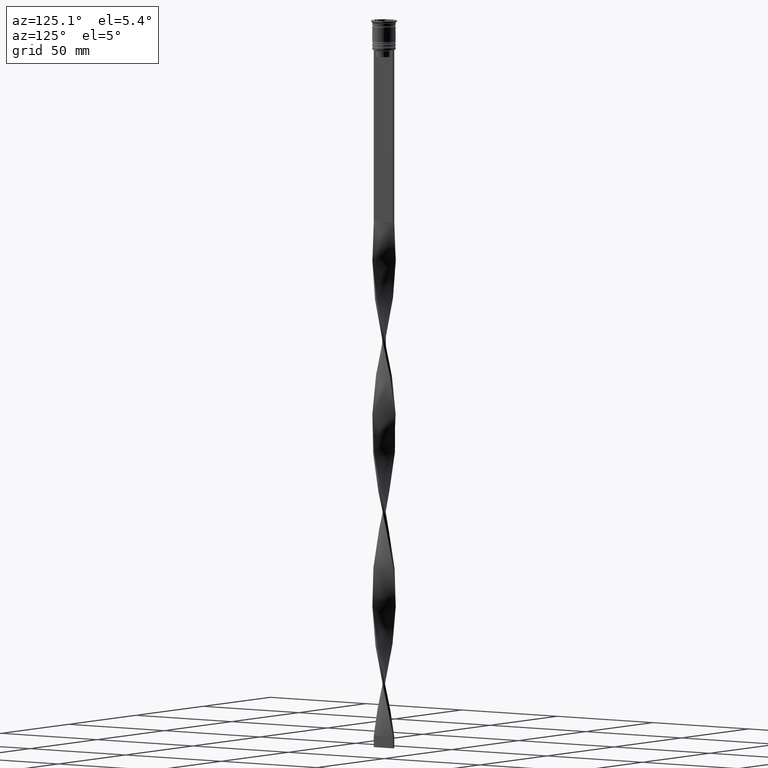
[diagram: clean part render]
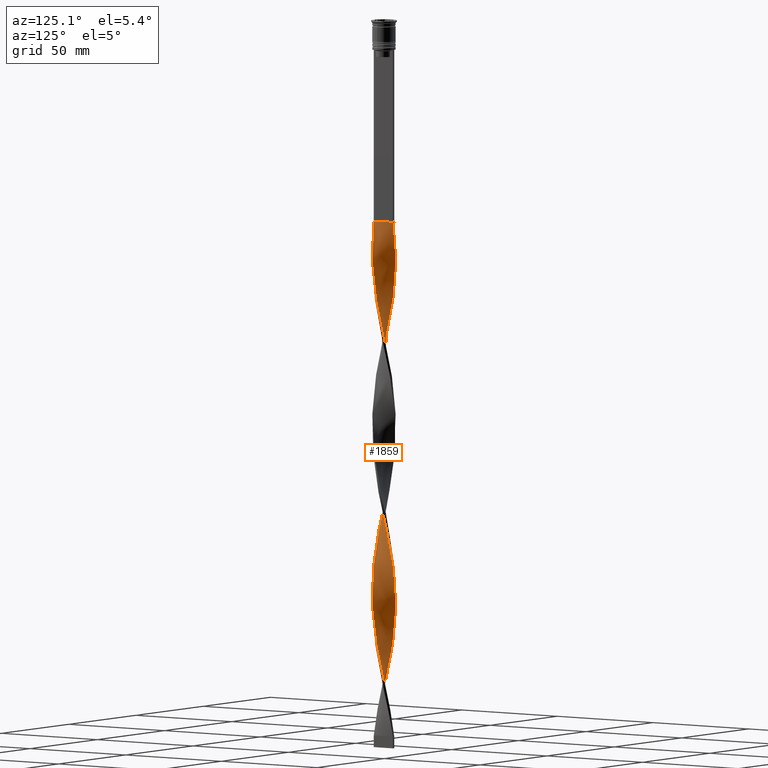
[diagram: same view with one face highlighted and labeled with its STEP entity id]
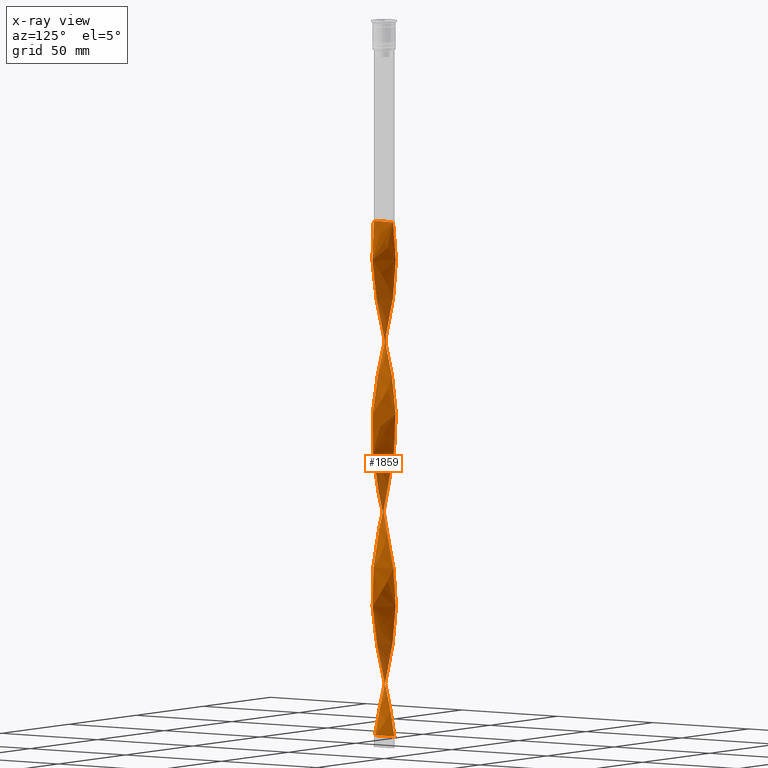
[diagram: x-ray of the same camera — body ghosted, the highlighted face saturated]
A machine part, auxiliary view. The second image highlights one B-rep face of the part: STEP entity #1859.
The next image is the same camera in x-ray: the body ghosted, the highlighted face saturated — about 0% of this face is hidden behind the body in this view.
In plain terms, the highlighted face is a freeform B-spline surface patch.
Its self-contained STEP definition (entity closure, byte-faithful):
#9 = CARTESIAN_POINT ( 'NONE',  ( -4.459306470373856079, 2.316157551480869881, -183.4298245614035068 ) ) ;
#14 = CARTESIAN_POINT ( 'NONE',  ( -2.474816539791244274, -4.393023322829789912, -150.4736842105263008 ) ) ;
#35 = CARTESIAN_POINT ( 'NONE',  ( -0.9143118122538356207, -4.958568818774617526, -305.5614035087719458 ) ) ;
#54 = CARTESIAN_POINT ( 'NONE',  ( 2.096405966873734261, -4.566736473900831150, -94.25438596491227372 ) ) ;
#58 = CARTESIAN_POINT ( 'NONE',  ( 0.5000000000000000000, -4.999999999999999112, -86.50000000000000000 ) ) ;
#75 = CARTESIAN_POINT ( 'NONE',  ( 0.5000000000000000000, -4.999999999999999112, -86.50000000000000000 ) ) ;
#79 = CARTESIAN_POINT ( 'NONE',  ( 4.582387650968865245, 2.103590795948400594, -131.0877192982456449 ) ) ;
#95 = CARTESIAN_POINT ( 'NONE',  ( -0.08568818774616442091, 5.041431181225382474, -158.2280701754386030 ) ) ;
#100 = CARTESIAN_POINT ( 'NONE',  ( -4.267384183849969759, -2.685666220508038382, -286.1754385964911762 ) ) ;
#120 = CARTESIAN_POINT ( 'NONE',  ( -2.324095515968828796, -4.474589461973507376, -220.2631578947368212 ) ) ;
#126 = CARTESIAN_POINT ( 'NONE',  ( -1.555904663195417426, 4.796095443128456814, -96.19298245614034215 ) ) ;
#127 = CARTESIAN_POINT ( 'NONE',  ( 4.941632792297182775, 0.9111889738649961989, -125.2719298245613970 ) ) ;
#140 = CARTESIAN_POINT ( 'NONE',  ( -1.940000089582125886, -4.635342452550980319, -222.2017543859649038 ) ) ;
#143 = CARTESIAN_POINT ( 'NONE',  ( 0.7452727871507813795, -4.986776443082574950, -165.9824561403508199 ) ) ;
#144 = CARTESIAN_POINT ( 'NONE',  ( -4.459306470373856079, 2.316157551480869881, -183.4298245614035068 ) ) ;
#150 = CARTESIAN_POINT ( 'NONE',  ( -4.378018920948803405, 2.466363786592376872, -113.6403508771929864 ) ) ;
#158 = CARTESIAN_POINT ( 'NONE',  ( 4.779714345601771441, -1.550590459937318588, -260.9736842105263577 ) ) ;
#161 = CARTESIAN_POINT ( 'NONE',  ( -4.651228756897745953, -1.946648882453702711, -134.9649122807017534 ) ) ;
#162 = CARTESIAN_POINT ( 'NONE',  ( 3.465633818146535372, -3.638596190637133354, -249.3421052631578902 ) ) ;
#163 = CARTESIAN_POINT ( 'NONE',  ( 0.5000000000000000000, 5.000000000000000888, -86.50000000000000000 ) ) ;
#175 = ORIENTED_EDGE ( 'NONE', *, *, #3972, .F. ) ;
#182 = CARTESIAN_POINT ( 'NONE',  ( -4.173650190928739789, -2.829136777236347378, -208.6315789473684106 ) ) ;
#187 = CARTESIAN_POINT ( 'NONE',  ( 4.941632792297183663, -0.9111889738649986414, -195.0614035087719458 ) ) ;
#188 = CARTESIAN_POINT ( 'NONE',  ( -2.676493308750143019, -4.252808903326800838, -218.3245614035087954 ) ) ;
#202 = CARTESIAN_POINT ( 'NONE',  ( 3.767136494507087541, -3.351425585076240221, -251.2807017543860013 ) ) ;
#205 = CARTESIAN_POINT ( 'NONE',  ( -4.582387650968867021, 2.103590795948401482, -115.5789473684210265 ) ) ;
#206 = CARTESIAN_POINT ( 'NONE',  ( -3.767136494507087541, 3.351425585076241997, -177.6140350877192873 ) ) ;
#221 = CARTESIAN_POINT ( 'NONE',  ( 1.717995393956227579, 4.740449624971874165, -228.0175438596490949 ) ) ;
#223 = CARTESIAN_POINT ( 'NONE',  ( -0.3297922997023116642, -5.014103812153977380, -229.9561403508772059 ) ) ;
#228 = CARTESIAN_POINT ( 'NONE',  ( -2.676493308750143019, 4.252808903326802614, -102.0087719298245474 ) ) ;
#242 = CARTESIAN_POINT ( 'NONE',  ( -4.173650190928740678, 2.829136777236350930, -259.0350877192983035 ) ) ;
#252 = CARTESIAN_POINT ( 'NONE',  ( 0.08568818774616604461, 5.041431181225384250, -235.7719298245614254 ) ) ;
#261 = CARTESIAN_POINT ( 'NONE',  ( -4.969744073267052364, -0.7427273027343305190, -276.4824561403509051 ) ) ;
#267 = CARTESIAN_POINT ( 'NONE',  ( 4.779714345601773218, 1.550590459937319476, -206.6929824561403564 ) ) ;
#279 = CARTESIAN_POINT ( 'NONE',  ( 4.267384183849968871, 2.685666220508037938, -212.5087719298246043 ) ) ;
#286 = CARTESIAN_POINT ( 'NONE',  ( 3.339978767552786110, -3.754269813465273664, -179.5526315789473415 ) ) ;
#301 = CARTESIAN_POINT ( 'NONE',  ( 4.866129521283639292, 1.320664341398920083, -274.5438596491227941 ) ) ;
#309 = CARTESIAN_POINT ( 'NONE',  ( -2.096405966873735593, -4.566736473900832927, -152.4122807017543835 ) ) ;
#322 = CARTESIAN_POINT ( 'NONE',  ( 5.017136063310725369, 0.5017136063310723149, -270.6666666666665719 ) ) ;
#325 = CARTESIAN_POINT ( 'NONE',  ( -4.267384183849966206, 2.685666220508038826, -181.4912280701754241 ) ) ;
#329 = CARTESIAN_POINT ( 'NONE',  ( -4.941632792297183663, 0.9111889738649969761, -121.3947368421052460 ) ) ;
#343 = CARTESIAN_POINT ( 'NONE',  ( 2.676493308750142575, 4.252808903326800838, -144.6578947368421098 ) ) ;
#348 = CARTESIAN_POINT ( 'NONE',  ( -5.017136063310728034, 0.5017136063310729810, -270.6666666666665719 ) ) ;
#365 = CARTESIAN_POINT ( 'NONE',  ( 4.582387650968865245, 2.103590795948400594, -131.0877192982456165 ) ) ;
#371 = CARTESIAN_POINT ( 'NONE',  ( 2.474816539791241166, -4.393023322829789024, -96.19298245614034215 ) ) ;
#389 = CARTESIAN_POINT ( 'NONE',  ( 1.150588725173100624, 4.891435943105514106, -152.4122807017543835 ) ) ;
#393 = CARTESIAN_POINT ( 'NONE',  ( 4.969744073267051476, -0.7427273027343307410, -117.5175438596491233 ) ) ;
#411 = CARTESIAN_POINT ( 'NONE',  ( 1.316153603105030268, -4.849509221873243625, -90.37719298245613686 ) ) ;
#416 = CARTESIAN_POINT ( 'NONE',  ( -3.651066433574120751, 3.477511282250446811, -255.1578947368421666 ) ) ;
#431 = CARTESIAN_POINT ( 'NONE',  ( 4.017260339178528206, -3.018545902792139302, -253.2192982456140555 ) ) ;
#435 = CARTESIAN_POINT ( 'NONE',  ( 4.969744073267053253, 0.7427273027343290757, -202.8157894736842195 ) ) ;
#436 = CARTESIAN_POINT ( 'NONE',  ( 3.767136494507087541, -3.351425585076240665, -103.9473684210526301 ) ) ;
#457 = CARTESIAN_POINT ( 'NONE',  ( 3.465633818146535372, -3.638596190637133354, -249.3421052631578902 ) ) ;
#460 = CARTESIAN_POINT ( 'NONE',  ( -3.465633818146537148, -3.638596190637134242, -144.6578947368421098 ) ) ;
#461 = CARTESIAN_POINT ( 'NONE',  ( 2.474816539791241166, -4.393023322829789024, -243.5263157894736707 ) ) ;
#473 = CARTESIAN_POINT ( 'NONE',  ( -3.028891101531456798, -4.031028344680093412, -216.3859649122807127 ) ) ;
#477 = CARTESIAN_POINT ( 'NONE',  ( 3.912358312251429826, -3.153324029743399315, -183.4298245614035068 ) ) ;
#478 = CARTESIAN_POINT ( 'NONE',  ( -3.339978767552790107, -3.754269813465268335, -214.4473684210526301 ) ) ;
#492 = CARTESIAN_POINT ( 'NONE',  ( -3.651066433574119863, -3.477511282250445035, -212.5087719298246043 ) ) ;
#495 = CARTESIAN_POINT ( 'NONE',  ( 1.555904663195416759, -4.796095443128456814, -169.8596491228070136 ) ) ;
#496 = CARTESIAN_POINT ( 'NONE',  ( 0.7452727871507843771, 4.986776443082572285, -154.3508771929824661 ) ) ;
#518 = CARTESIAN_POINT ( 'NONE',  ( -4.017260339178529982, -3.018545902792138858, -140.7807017543859445 ) ) ;
#519 = CARTESIAN_POINT ( 'NONE',  ( 2.676493308750142575, 4.252808903326800838, -144.6578947368421098 ) ) ;
#537 = CARTESIAN_POINT ( 'NONE',  ( 2.474816539791245162, 4.393023322829789912, -224.1403508771929864 ) ) ;
#538 = CARTESIAN_POINT ( 'NONE',  ( -4.267384183849967094, 2.685666220508038826, -181.4912280701754241 ) ) ;
#542 = FACE_OUTER_BOUND ( 'NONE', #1994, .T. ) ;
#550 = EDGE_CURVE ( 'NONE', #2584, #2352, #3754, .T. ) ;
#553 = CARTESIAN_POINT ( 'NONE',  ( 3.767136494507091538, 3.351425585076239333, -216.3859649122807127 ) ) ;
#560 = CARTESIAN_POINT ( 'NONE',  ( 1.316153603105034264, 4.849509221873244513, -229.9561403508772059 ) ) ;
#576 = CARTESIAN_POINT ( 'NONE',  ( -1.940000089582123666, 4.635342452550982983, -245.4649122807017534 ) ) ;
#578 = CARTESIAN_POINT ( 'NONE',  ( -0.4999999999999993339, 4.999999999999999112, -307.5000000000000000 ) ) ;
#585 = CARTESIAN_POINT ( 'NONE',  ( -3.767136494507089317, -3.351425585076241997, -142.7192982456140271 ) ) ;
#595 = CARTESIAN_POINT ( 'NONE',  ( 4.017260339178531758, 3.018545902792137081, -214.4473684210526301 ) ) ;
#603 = CARTESIAN_POINT ( 'NONE',  ( 1.555904663195416537, -4.796095443128457703, -169.8596491228070136 ) ) ;
#615 = CARTESIAN_POINT ( 'NONE',  ( -4.582387650968867021, 2.103590795948401482, -262.9122807017543551 ) ) ;
#622 = CARTESIAN_POINT ( 'NONE',  ( 3.465633818146537592, 3.638596190637133354, -218.3245614035087954 ) ) ;
#637 = CARTESIAN_POINT ( 'NONE',  ( 4.378018920948802517, 2.466363786592374652, -280.3596491228070136 ) ) ;
#641 = CARTESIAN_POINT ( 'NONE',  ( 3.767136494507087541, -3.351425585076240221, -103.9473684210526159 ) ) ;
#645 = CARTESIAN_POINT ( 'NONE',  ( 4.017260339178531758, 3.018545902792137081, -214.4473684210526301 ) ) ;
#669 = CARTESIAN_POINT ( 'NONE',  ( -4.866129521283640180, 1.320664341398920971, -266.7894736842105203 ) ) ;
#684 = CARTESIAN_POINT ( 'NONE',  ( 3.465633818146535372, -3.638596190637133354, -102.0087719298245474 ) ) ;
#688 = CARTESIAN_POINT ( 'NONE',  ( -4.173650190928740678, 2.829136777236350930, -259.0350877192983035 ) ) ;
#704 = CARTESIAN_POINT ( 'NONE',  ( 3.028891101531455021, 4.031028344680095188, -142.7192982456140271 ) ) ;
#710 = CARTESIAN_POINT ( 'NONE',  ( 4.908199934305798706, -1.154532037420935353, -115.5789473684210265 ) ) ;
#729 = CARTESIAN_POINT ( 'NONE',  ( -1.316153603105029823, 4.849509221873243625, -164.0438596491227941 ) ) ;
#733 = CARTESIAN_POINT ( 'NONE',  ( -0.7452727871507828228, 4.986776443082574062, -239.6491228070175055 ) ) ;
#750 = CARTESIAN_POINT ( 'NONE',  ( 4.582387650968865245, 2.103590795948400594, -278.4210526315789593 ) ) ;
#754 = CARTESIAN_POINT ( 'NONE',  ( 5.031288212228302470, -0.3309225680477264619, -119.4561403508771917 ) ) ;
#769 = CARTESIAN_POINT ( 'NONE',  ( 0.08568818774616382417, -5.041431181225382474, -231.8947368421052602 ) ) ;
#772 = CARTESIAN_POINT ( 'NONE',  ( -5.017136063310726257, 0.5017136063310729810, -123.3333333333333286 ) ) ;
#773 = CARTESIAN_POINT ( 'NONE',  ( 2.096405966873734261, -4.566736473900831150, -241.5877192982455881 ) ) ;
#792 = CARTESIAN_POINT ( 'NONE',  ( -2.676493308750143019, -4.252808903326800838, -218.3245614035087954 ) ) ;
#795 = CARTESIAN_POINT ( 'NONE',  ( -2.096405966873735593, -4.566736473900832927, -152.4122807017543835 ) ) ;
#797 = CARTESIAN_POINT ( 'NONE',  ( 4.651228756897745065, -1.946648882453702267, -259.0350877192983035 ) ) ;
#810 = CARTESIAN_POINT ( 'NONE',  ( 4.173650190928738901, 2.829136777236350042, -282.2982456140351246 ) ) ;
#814 = CARTESIAN_POINT ( 'NONE',  ( -1.150588725173100402, 4.891435943105515882, -94.25438596491227372 ) ) ;
#815 = CARTESIAN_POINT ( 'NONE',  ( 1.717995393956226691, -4.740449624971873277, -239.6491228070175055 ) ) ;
#827 = CARTESIAN_POINT ( 'NONE',  ( -0.4999999999999993339, 4.999999999999999112, -307.5000000000000000 ) ) ;
#830 = CARTESIAN_POINT ( 'NONE',  ( -4.267384183849968871, -2.685666220508038382, -138.8421052631578902 ) ) ;
#831 = CARTESIAN_POINT ( 'NONE',  ( 3.339978767552787886, 3.754269813465269223, -140.7807017543859445 ) ) ;
#856 = CARTESIAN_POINT ( 'NONE',  ( 3.651066433574119863, -3.477511282250448144, -181.4912280701754241 ) ) ;
#857 = CARTESIAN_POINT ( 'NONE',  ( -4.724258586126253157, -1.712127568673659006, -202.8157894736842195 ) ) ;
#873 = CARTESIAN_POINT ( 'NONE',  ( -1.555904663195417426, 4.796095443128456814, -243.5263157894736707 ) ) ;
#882 = DIRECTION ( 'NONE',  ( 0.000000000000000000, 1.000000000000000000, 0.000000000000000000 ) ) ;
#889 = CARTESIAN_POINT ( 'NONE',  ( -2.474816539791244274, -4.393023322829789912, -297.8070175438595584 ) ) ;
#890 = CARTESIAN_POINT ( 'NONE',  ( 1.940000089582123666, 4.635342452550982095, -295.8684210526315610 ) ) ;
#896 = CARTESIAN_POINT ( 'NONE',  ( 2.676493308750143019, -4.252808903326802614, -175.6754385964912046 ) ) ;
#912 = EDGE_CURVE ( 'NONE', #2690, #1763, #1654, .T. ) ;
#914 = CARTESIAN_POINT ( 'NONE',  ( 1.555904663195419646, 4.796095443128455038, -297.8070175438595584 ) ) ;
#922 = CARTESIAN_POINT ( 'NONE',  ( 4.866129521283640180, -1.320664341398923414, -193.1228070175438063 ) ) ;
#932 = CARTESIAN_POINT ( 'NONE',  ( -4.908199934305800483, -1.154532037420935353, -278.4210526315789593 ) ) ;
#940 = CARTESIAN_POINT ( 'NONE',  ( 1.150588725173100180, -4.891435943105515882, -167.9210526315789309 ) ) ;
#950 = CARTESIAN_POINT ( 'NONE',  ( 4.173650190928738901, 2.829136777236349598, -282.2982456140351246 ) ) ;
#953 = CARTESIAN_POINT ( 'NONE',  ( -4.017260339178526429, 3.018545902792141078, -179.5526315789473415 ) ) ;
#956 = CARTESIAN_POINT ( 'NONE',  ( 4.267384183849969759, 2.685666220508037938, -212.5087719298245759 ) ) ;
#977 = CARTESIAN_POINT ( 'NONE',  ( 4.651228756897744177, -1.946648882453702267, -111.7017543859649038 ) ) ;
#982 = CARTESIAN_POINT ( 'NONE',  ( 3.912358312251429826, -3.153324029743399315, -183.4298245614035068 ) ) ;
#999 = CARTESIAN_POINT ( 'NONE',  ( 0.3297922997023089442, 5.014103812153978268, -156.2894736842105203 ) ) ;
#1003 = CARTESIAN_POINT ( 'NONE',  ( -2.096405966873735593, -4.566736473900832927, -299.7456140350877263 ) ) ;
#1019 = CARTESIAN_POINT ( 'NONE',  ( 0.7452727871507842661, 4.986776443082572285, -154.3508771929824661 ) ) ;
#1023 = CARTESIAN_POINT ( 'NONE',  ( 4.267384183849967982, -2.685666220508037494, -107.8245614035087385 ) ) ;
#1038 = CARTESIAN_POINT ( 'NONE',  ( 4.267384183849967094, -2.685666220508037494, -107.8245614035087527 ) ) ;
#1044 = CARTESIAN_POINT ( 'NONE',  ( -3.465633818146537148, -3.638596190637134242, -291.9912280701753957 ) ) ;
#1059 = CARTESIAN_POINT ( 'NONE',  ( 2.324095515968828352, 4.474589461973507376, -293.9298245614035068 ) ) ;
#1063 = CARTESIAN_POINT ( 'NONE',  ( -4.459306470373857856, -2.316157551480869881, -284.2368421052631220 ) ) ;
#1077 = CARTESIAN_POINT ( 'NONE',  ( 4.651228756897744177, -1.946648882453702267, -259.0350877192983035 ) ) ;
#1080 = CARTESIAN_POINT ( 'NONE',  ( -4.724258586126253157, 1.712127568673661671, -117.5175438596491233 ) ) ;
#1081 = CARTESIAN_POINT ( 'NONE',  ( -4.017260339178529982, -3.018545902792138858, -288.1140350877192873 ) ) ;
#1098 = CARTESIAN_POINT ( 'NONE',  ( 4.866129521283639292, 1.320664341398920083, -274.5438596491227941 ) ) ;
#1102 = CARTESIAN_POINT ( 'NONE',  ( 1.940000089582123222, -4.635342452550982983, -171.7982456140350962 ) ) ;
#1103 = CARTESIAN_POINT ( 'NONE',  ( -4.582387650968865245, -2.103590795948400149, -204.7543859649123306 ) ) ;
#1122 = CARTESIAN_POINT ( 'NONE',  ( -1.555904663195419868, -4.796095443128454150, -224.1403508771929864 ) ) ;
#1125 = CARTESIAN_POINT ( 'NONE',  ( -3.164131141785982759, -3.925766796198028263, -146.5964912280701355 ) ) ;
#1126 = CARTESIAN_POINT ( 'NONE',  ( -2.474816539791240722, 4.393023322829789024, -169.8596491228070136 ) ) ;
#1140 = CARTESIAN_POINT ( 'NONE',  ( -0.7452727871507827118, -4.986776443082572285, -228.0175438596490949 ) ) ;
#1143 = CARTESIAN_POINT ( 'NONE',  ( -3.767136494507089317, -3.351425585076241553, -142.7192982456140271 ) ) ;
#1145 = CARTESIAN_POINT ( 'NONE',  ( 2.324095515968828796, 4.474589461973508264, -146.5964912280701355 ) ) ;
#1163 = CARTESIAN_POINT ( 'NONE',  ( -4.779714345601773218, -1.550590459937317700, -133.0263157894736992 ) ) ;
#1164 = CARTESIAN_POINT ( 'NONE',  ( 1.555904663195419646, 4.796095443128455038, -150.4736842105263008 ) ) ;
#1172 = CARTESIAN_POINT ( 'NONE',  ( -1.555904663195417426, 4.796095443128457703, -96.19298245614034215 ) ) ;
#1185 = CARTESIAN_POINT ( 'NONE',  ( -2.096405966873735593, -4.566736473900832927, -299.7456140350877263 ) ) ;
#1201 = CARTESIAN_POINT ( 'NONE',  ( -5.024212137769516140, 0.08539551914167348157, -272.6052631578947398 ) ) ;
#1207 = CARTESIAN_POINT ( 'NONE',  ( -4.908199934305800483, -1.154532037420935353, -131.0877192982456449 ) ) ;
#1220 = CARTESIAN_POINT ( 'NONE',  ( -0.5000000000000006661, -5.000000000000000888, -307.5000000000000000 ) ) ;
#1227 = CARTESIAN_POINT ( 'NONE',  ( -4.582387650968867021, 2.103590795948401482, -115.5789473684210265 ) ) ;
#1250 = CARTESIAN_POINT ( 'NONE',  ( -3.164131141785982759, -3.925766796198028263, -146.5964912280701355 ) ) ;
#1261 = CARTESIAN_POINT ( 'NONE',  ( 1.316153603105034264, 4.849509221873244513, -229.9561403508772059 ) ) ;
#1268 = CARTESIAN_POINT ( 'NONE',  ( -4.267384183849969759, -2.685666220508038382, -138.8421052631578902 ) ) ;
#1283 = CARTESIAN_POINT ( 'NONE',  ( 4.969744073267051476, -0.7427273027343307410, -117.5175438596491233 ) ) ;
#1287 = CARTESIAN_POINT ( 'NONE',  ( 2.324095515968828796, -4.474589461973509152, -173.7368421052631220 ) ) ;
#1305 = CARTESIAN_POINT ( 'NONE',  ( 0.9143118122538338444, -4.958568818774615750, -88.43859649122805422 ) ) ;
#1310 = CARTESIAN_POINT ( 'NONE',  ( 2.096405966873734261, -4.566736473900831150, -94.25438596491227372 ) ) ;
#1328 = CARTESIAN_POINT ( 'NONE',  ( 4.866129521283639292, 1.320664341398920083, -127.2105263157894370 ) ) ;
#1332 = CARTESIAN_POINT ( 'NONE',  ( 4.459306470373856079, -2.316157551480869881, -109.7631578947368354 ) ) ;
#1349 = CARTESIAN_POINT ( 'NONE',  ( 4.017260339178528206, -3.018545902792139302, -105.8859649122806985 ) ) ;
#1353 = CARTESIAN_POINT ( 'NONE',  ( -1.717995393956229355, -4.740449624971875053, -301.6842105263157805 ) ) ;
#1372 = CARTESIAN_POINT ( 'NONE',  ( -2.819473840788611518, 4.159395059513907533, -171.7982456140350962 ) ) ;
#1376 = CARTESIAN_POINT ( 'NONE',  ( 4.724258586126252268, 1.712127568673660560, -129.1491228070175339 ) ) ;
#1394 = CARTESIAN_POINT ( 'NONE',  ( 1.316153603105030268, -4.849509221873243625, -237.7105263157894797 ) ) ;
#1398 = CARTESIAN_POINT ( 'NONE',  ( 0.5000000000000000000, 5.000000000000000888, -86.50000000000000000 ) ) ;
#1399 = CARTESIAN_POINT ( 'NONE',  ( -5.024212137769516140, 0.08539551914167348157, -272.6052631578947398 ) ) ;
#1414 = CARTESIAN_POINT ( 'NONE',  ( 4.908199934305798706, -1.154532037420935353, -262.9122807017543551 ) ) ;
#1417 = CARTESIAN_POINT ( 'NONE',  ( -0.08568818774616768219, -5.041431181225384250, -162.1052631578947398 ) ) ;
#1418 = CARTESIAN_POINT ( 'NONE',  ( -4.173650190928739789, -2.829136777236346934, -208.6315789473684106 ) ) ;
#1419 = CARTESIAN_POINT ( 'NONE',  ( -0.4999999999999993339, 4.999999999999999112, -307.5000000000000000 ) ) ;
#1431 = CARTESIAN_POINT ( 'NONE',  ( 3.028891101531455021, 4.031028344680095188, -290.0526315789473415 ) ) ;
#1436 = CARTESIAN_POINT ( 'NONE',  ( -2.819473840788613295, -4.159395059513908421, -148.5350877192982466 ) ) ;
#1437 = CARTESIAN_POINT ( 'NONE',  ( 1.940000089582123666, 4.635342452550982095, -148.5350877192982466 ) ) ;
#1458 = CARTESIAN_POINT ( 'NONE',  ( 2.096405966873734261, -4.566736473900831150, -241.5877192982455881 ) ) ;
#1461 = CARTESIAN_POINT ( 'NONE',  ( -1.940000089582123666, 4.635342452550982983, -98.13157894736841058 ) ) ;
#1462 = CARTESIAN_POINT ( 'NONE',  ( -4.651228756897743288, 1.946648882453704710, -185.3684210526315894 ) ) ;
#1466 = CARTESIAN_POINT ( 'NONE',  ( -0.3297922997023085001, 5.014103812153980044, -90.37719298245613686 ) ) ;
#1479 = CARTESIAN_POINT ( 'NONE',  ( -3.028891101531455909, 4.031028344680096076, -103.9473684210526159 ) ) ;
#1480 = CARTESIAN_POINT ( 'NONE',  ( -4.866129521283639292, -1.320664341398917641, -200.8771929824561084 ) ) ;
#1496 = CARTESIAN_POINT ( 'NONE',  ( -4.267384183849968871, -2.685666220508038382, -286.1754385964911762 ) ) ;
#1497 = CARTESIAN_POINT ( 'NONE',  ( -1.717995393956225580, 4.740449624971874165, -165.9824561403508199 ) ) ;
#1516 = CARTESIAN_POINT ( 'NONE',  ( -4.941632792297183663, 0.9111889738649969761, -268.7280701754385746 ) ) ;
#1517 = CARTESIAN_POINT ( 'NONE',  ( 3.912358312251428938, 3.153324029743397094, -284.2368421052631220 ) ) ;
#1523 = CARTESIAN_POINT ( 'NONE',  ( -0.3297922997023085001, 5.014103812153980044, -237.7105263157894797 ) ) ;
#1534 = CARTESIAN_POINT ( 'NONE',  ( -3.164131141785982759, -3.925766796198028263, -293.9298245614035068 ) ) ;
#1541 = CARTESIAN_POINT ( 'NONE',  ( 4.969744073267053253, 0.7427273027343290757, -202.8157894736842195 ) ) ;
#1552 = CARTESIAN_POINT ( 'NONE',  ( 0.5000000000000000000, 5.000000000000000888, -233.8333333333333428 ) ) ;
#1559 = CARTESIAN_POINT ( 'NONE',  ( 4.582387650968867021, -2.103590795948402370, -189.2456140350877263 ) ) ;
#1576 = CARTESIAN_POINT ( 'NONE',  ( -0.08568818774616443479, 5.041431181225382474, -305.5614035087719458 ) ) ;
#1585 = CARTESIAN_POINT ( 'NONE',  ( -1.316153603105031378, -4.849509221873245401, -156.2894736842105203 ) ) ;
#1599 = CARTESIAN_POINT ( 'NONE',  ( -4.779714345601770553, 1.550590459937320587, -187.3070175438596436 ) ) ;
#1603 = CARTESIAN_POINT ( 'NONE',  ( 2.096405966873736482, 4.566736473900832927, -226.0789473684210407 ) ) ;
#1617 = CARTESIAN_POINT ( 'NONE',  ( -3.465633818146535372, 3.638596190637134242, -175.6754385964912046 ) ) ;
#1623 = CARTESIAN_POINT ( 'NONE',  ( -3.164131141785982759, -3.925766796198028263, -293.9298245614035068 ) ) ;
#1646 = CARTESIAN_POINT ( 'NONE',  ( 2.819473840788611962, -4.159395059513907533, -98.13157894736841058 ) ) ;
#1654 =( BOUNDED_CURVE ( )  B_SPLINE_CURVE ( 2, ( #1398, #2677, #4025, #3623, #814, #126, #1461, #2756, #3070, #1479, #1735, #3648, #2128, #3943, #2359, #205, #1080, #3687, #2085, #772, #2045, #3669, #1711, #3353, #1163, #161, #3316, #830, #518, #1143, #460, #1125, #1436, #3008, #795, #1770, #2422, #1794, #3961, #1417, #2105, #143, #2738, #495, #1102, #2381, #2067, #3377, #3337, #856, #477, #1751, #2716, #3986, #3045, #2403, #187, #4006, #2442, #3708, #435, #2989, #3416, #2523, #1811, #279, #595, #553, #3434, #2775, #1827, #537, #3088, #221, #1261, #2145, #1552, #3124, #3764, #3105, #2813, #873, #576, #3787, #4099, #1851, #3456, #4079, #2796, #242, #3473, #615, #1888, #3727, #1516, #4064, #1201, #1870, #261, #932, #3162, #2481, #2203, #1496, #2831, #3144, #3743, #1534, #4044, #889, #1185, #2464, #2162, #2542, #1220 ),
 .UNSPECIFIED., .F., .T. ) 
 B_SPLINE_CURVE_WITH_KNOTS ( ( 3, 2, 2, 2, 2, 2, 2, 2, 2, 2, 2, 2, 2, 2, 2, 2, 2, 2, 2, 2, 2, 2, 2, 2, 2, 2, 2, 2, 2, 2, 2, 2, 2, 2, 2, 2, 2, 2, 2, 2, 2, 2, 2, 2, 2, 2, 2, 2, 2, 2, 2, 2, 2, 2, 2, 2, 2, 3 ),
 ( 0.000000000000000000, 0.01315789473684210453, 0.02631578947368420907, 0.03947368421052631360, 0.05263157894736841813, 0.06578947368421052266, 0.07894736842105262720, 0.09210526315789473173, 0.1052631578947368363, 0.1184210526315789408, 0.1315789473684210453, 0.1447368421052631637, 0.1578947368421052544, 0.1710526315789473728, 0.1842105263157894635, 0.1973684210526315541, 0.2105263157894736725, 0.2236842105263157909, 0.2368421052631578816, 0.2500000000000000000, 0.2631578947368420907, 0.2763157894736842368, 0.2894736842105263275, 0.3026315789473684181, 0.3157894736842105088, 0.3289473684210526550, 0.3421052631578947456, 0.3552631578947368918, 0.3684210526315789269, 0.3815789473684210731, 0.3947368421052631082, 0.4078947368421052544, 0.4210526315789473450, 0.4342105263157895467, 0.4473684210526315819, 0.4605263157894736725, 0.4736842105263157632, 0.4868421052631579093, 0.5000000000000000000, 0.5131578947368421462, 0.5263157894736841813, 0.5394736842105263275, 0.5526315789473684736, 0.5657894736842105088, 0.5789473684210526550, 0.5921052631578946901, 0.6052631578947368363, 0.6184210526315789824, 0.6315789473684210176, 0.6447368421052631637, 0.6578947368421053099, 0.6710526315789473450, 0.6842105263157894912, 0.6973684210526315264, 0.7105263157894737835, 0.7236842105263158187, 0.7368421052631578538, 0.7500000000000000000 ),
 .UNSPECIFIED. ) 
 CURVE ( )  GEOMETRIC_REPRESENTATION_ITEM ( )  RATIONAL_B_SPLINE_CURVE ( ( 1.000000000000000000, 0.9965844930066698470, 1.000000000000000000, 0.9965844930066698470, 1.000000000000000000, 0.9965844930066698470, 1.000000000000000000, 0.9965844930066698470, 1.000000000000000000, 0.9965844930066698470, 1.000000000000000000, 0.9965844930066698470, 1.000000000000000000, 0.9965844930066698470, 1.000000000000000000, 0.9965844930066698470, 1.000000000000000000, 0.9965844930066698470, 1.000000000000000000, 0.9965844930066698470, 1.000000000000000000, 0.9965844930066698470, 1.000000000000000000, 0.9965844930066698470, 1.000000000000000000, 0.9965844930066698470, 1.000000000000000000, 0.9965844930066698470, 1.000000000000000000, 0.9965844930066698470, 1.000000000000000000, 0.9965844930066698470, 1.000000000000000000, 0.9965844930066698470, 1.000000000000000000, 0.9965844930066698470, 1.000000000000000000, 0.9965844930066698470, 1.000000000000000000, 0.9965844930066698470, 1.000000000000000000, 0.9965844930066698470, 1.000000000000000000, 0.9965844930066698470, 1.000000000000000000, 0.9965844930066698470, 1.000000000000000000, 0.9965844930066698470, 1.000000000000000000, 0.9965844930066698470, 1.000000000000000000, 0.9965844930066698470, 1.000000000000000000, 0.9965844930066698470, 1.000000000000000000, 0.9965844930066698470, 1.000000000000000000, 0.9965844930066698470, 1.000000000000000000, 0.9965844930066698470, 1.000000000000000000, 0.9965844930066698470, 1.000000000000000000, 0.9965844930066698470, 1.000000000000000000, 0.9965844930066698470, 1.000000000000000000, 0.9965844930066698470, 1.000000000000000000, 0.9965844930066698470, 1.000000000000000000, 0.9965844930066698470, 1.000000000000000000, 0.9965844930066698470, 1.000000000000000000, 0.9965844930066698470, 1.000000000000000000, 0.9965844930066698470, 1.000000000000000000, 0.9965844930066698470, 1.000000000000000000, 0.9965844930066698470, 1.000000000000000000, 0.9965844930066698470, 1.000000000000000000, 0.9965844930066698470, 1.000000000000000000, 0.9965844930066698470, 1.000000000000000000, 0.9965844930066698470, 1.000000000000000000, 0.9965844930066698470, 1.000000000000000000, 0.9965844930066698470, 1.000000000000000000, 0.9965844930066698470, 1.000000000000000000, 0.9965844930066698470, 1.000000000000000000, 0.9965844930066698470, 1.000000000000000000, 0.9965844930066698470, 1.000000000000000000, 0.9965844930066698470, 1.000000000000000000, 0.9965844930066698470, 1.000000000000000000, 0.9965844930066698470, 1.000000000000000000, 0.9965844930066698470, 1.000000000000000000, 0.9965844930066698470, 1.000000000000000000, 0.9965844930066698470, 1.000000000000000000 ) ) 
 REPRESENTATION_ITEM ( '' )  );
#1667 = CARTESIAN_POINT ( 'NONE',  ( 4.459306470373856079, -2.316157551480869881, -109.7631578947368354 ) ) ;
#1671 = CARTESIAN_POINT ( 'NONE',  ( -4.908199934305800483, -1.154532037420935353, -278.4210526315789593 ) ) ;
#1687 = CARTESIAN_POINT ( 'NONE',  ( 3.164131141785981871, -3.925766796198026487, -100.0701754385964932 ) ) ;
#1691 = CARTESIAN_POINT ( 'NONE',  ( -4.779714345601773218, -1.550590459937317700, -280.3596491228070136 ) ) ;
#1708 = CARTESIAN_POINT ( 'NONE',  ( 5.017136063310725369, 0.5017136063310723149, -270.6666666666666288 ) ) ;
#1711 = CARTESIAN_POINT ( 'NONE',  ( -4.969744073267052364, -0.7427273027343305190, -129.1491228070175339 ) ) ;
#1714 = CARTESIAN_POINT ( 'NONE',  ( 5.024212137769514364, 0.08539551914167299584, -121.3947368421052460 ) ) ;
#1731 = CARTESIAN_POINT ( 'NONE',  ( 2.819473840788611962, -4.159395059513907533, -245.4649122807017534 ) ) ;
#1735 = CARTESIAN_POINT ( 'NONE',  ( -3.339978767552788330, 3.754269813465271888, -105.8859649122806985 ) ) ;
#1736 = CARTESIAN_POINT ( 'NONE',  ( -2.324095515968829240, -4.474589461973508264, -220.2631578947368212 ) ) ;
#1740 = CARTESIAN_POINT ( 'NONE',  ( -3.912358312251429826, 3.153324029743399315, -109.7631578947368354 ) ) ;
#1748 = CARTESIAN_POINT ( 'NONE',  ( 5.024212137769514364, 0.08539551914167299584, -268.7280701754385746 ) ) ;
#1751 = CARTESIAN_POINT ( 'NONE',  ( 4.173650190928738901, -2.829136777236353151, -185.3684210526315610 ) ) ;
#1752 = CARTESIAN_POINT ( 'NONE',  ( 2.819473840788611962, -4.159395059513907533, -245.4649122807017534 ) ) ;
#1754 = CARTESIAN_POINT ( 'NONE',  ( -0.5000000000000006661, -5.000000000000000888, -307.5000000000000000 ) ) ;
#1763 = VERTEX_POINT ( 'NONE', #3053 ) ;
#1766 = CARTESIAN_POINT ( 'NONE',  ( -1.150588725173101068, -4.891435943105514106, -226.0789473684210407 ) ) ;
#1770 = CARTESIAN_POINT ( 'NONE',  ( -1.717995393956229355, -4.740449624971874165, -154.3508771929824661 ) ) ;
#1771 = CARTESIAN_POINT ( 'NONE',  ( -2.096405966873734261, 4.566736473900831150, -167.9210526315789309 ) ) ;
#1790 = CARTESIAN_POINT ( 'NONE',  ( 1.150588725173100624, 4.891435943105514106, -299.7456140350877263 ) ) ;
#1794 = CARTESIAN_POINT ( 'NONE',  ( -0.9143118122538357317, -4.958568818774617526, -158.2280701754386030 ) ) ;
#1795 = CARTESIAN_POINT ( 'NONE',  ( 1.150588725173100624, 4.891435943105514106, -152.4122807017543835 ) ) ;
#1811 = CARTESIAN_POINT ( 'NONE',  ( 4.459306470373858744, 2.316157551480868992, -210.5701754385964932 ) ) ;
#1812 = CARTESIAN_POINT ( 'NONE',  ( -4.969744073267050588, 0.7427273027343300749, -191.1842105263157805 ) ) ;
#1827 = CARTESIAN_POINT ( 'NONE',  ( 2.819473840788615515, 4.159395059513907533, -222.2017543859649038 ) ) ;
#1836 = CARTESIAN_POINT ( 'NONE',  ( 0.9143118122538362869, 4.958568818774617526, -231.8947368421052886 ) ) ;
#1851 = CARTESIAN_POINT ( 'NONE',  ( -3.028891101531455909, 4.031028344680096076, -251.2807017543860013 ) ) ;
#1859 = ADVANCED_FACE ( 'NONE', ( #542 ), #2080, .T. ) ;
#1861 = CARTESIAN_POINT ( 'NONE',  ( 4.173650190928738901, -2.829136777236352707, -185.3684210526315894 ) ) ;
#1870 = CARTESIAN_POINT ( 'NONE',  ( -5.031288212228305134, -0.3309225680477259068, -274.5438596491227941 ) ) ;
#1871 = CARTESIAN_POINT ( 'NONE',  ( 2.676493308750142575, 4.252808903326800838, -291.9912280701753957 ) ) ;
#1877 = CARTESIAN_POINT ( 'NONE',  ( 4.651228756897746841, 1.946648882453700269, -208.6315789473684106 ) ) ;
#1888 = CARTESIAN_POINT ( 'NONE',  ( -4.724258586126253157, 1.712127568673661671, -264.8508771929824661 ) ) ;
#1894 = CARTESIAN_POINT ( 'NONE',  ( -5.024212137769516140, 0.08539551914167348157, -125.2719298245613970 ) ) ;
#1912 = CARTESIAN_POINT ( 'NONE',  ( 5.024212137769514364, 0.08539551914167299584, -268.7280701754385746 ) ) ;
#1915 = CARTESIAN_POINT ( 'NONE',  ( 3.339978767552787886, 3.754269813465269223, -140.7807017543859445 ) ) ;
#1920 = CARTESIAN_POINT ( 'NONE',  ( 5.024212137769516140, -0.08539551914167299584, -198.9385964912280826 ) ) ;
#1921 = VECTOR ( 'NONE', #882, 1000.000000000000000 ) ;
#1936 = CARTESIAN_POINT ( 'NONE',  ( 4.378018920948802517, 2.466363786592374652, -133.0263157894736992 ) ) ;
#1940 = CARTESIAN_POINT ( 'NONE',  ( -3.339978767552788330, 3.754269813465271888, -253.2192982456140555 ) ) ;
#1954 = CARTESIAN_POINT ( 'NONE',  ( 4.908199934305798706, -1.154532037420935353, -115.5789473684210265 ) ) ;
#1959 = CARTESIAN_POINT ( 'NONE',  ( -4.724258586126253157, 1.712127568673661671, -264.8508771929824661 ) ) ;
#1977 = CARTESIAN_POINT ( 'NONE',  ( 4.173650190928738901, 2.829136777236350042, -134.9649122807017534 ) ) ;
#1982 = CARTESIAN_POINT ( 'NONE',  ( -1.150588725173100402, 4.891435943105515882, -241.5877192982455881 ) ) ;
#1994 = EDGE_LOOP ( 'NONE', ( #175, #3347, #3268, #2581 ) ) ;
#1999 = CARTESIAN_POINT ( 'NONE',  ( -2.096405966873734261, 4.566736473900831150, -167.9210526315789309 ) ) ;
#2003 = CARTESIAN_POINT ( 'NONE',  ( -3.912358312251429826, 3.153324029743399315, -257.0964912280701924 ) ) ;
#2020 = CARTESIAN_POINT ( 'NONE',  ( 0.9143118122538338444, -4.958568818774615750, -235.7719298245613970 ) ) ;
#2024 = CARTESIAN_POINT ( 'NONE',  ( 0.9143118122538338444, -4.958568818774616638, -88.43859649122805422 ) ) ;
#2042 = CARTESIAN_POINT ( 'NONE',  ( -4.724258586126253157, -1.712127568673659006, -202.8157894736842195 ) ) ;
#2045 = CARTESIAN_POINT ( 'NONE',  ( -5.024212137769516140, 0.08539551914167348157, -125.2719298245613970 ) ) ;
#2047 = CARTESIAN_POINT ( 'NONE',  ( -5.024212137769514364, -0.08539551914167126112, -195.0614035087719458 ) ) ;
#2064 = CARTESIAN_POINT ( 'NONE',  ( 4.378018920948802517, 2.466363786592374652, -280.3596491228070136 ) ) ;
#2067 = CARTESIAN_POINT ( 'NONE',  ( 2.676493308750143019, -4.252808903326802614, -175.6754385964912046 ) ) ;
#2069 = CARTESIAN_POINT ( 'NONE',  ( 4.779714345601771441, -1.550590459937318588, -260.9736842105263577 ) ) ;
#2070 = CARTESIAN_POINT ( 'NONE',  ( -0.5000000000000002220, -1.666666666666667851, -307.5000000000000000 ) ) ;
#2080 =( BOUNDED_SURFACE ( )  B_SPLINE_SURFACE ( 1, 2, ( 
 ( #3361, #4030, #1466, #2743, #2428, #1172, #3657, #3968, #228, #2784, #2151, #3423, #1740, #3014, #150, #1227, #3194, #3445, #329, #2488, #1894, #2193, #2820, #1207, #2532, #4069, #4129, #1268, #3500, #585, #2878, #1250, #2227, #14, #309, #3151, #1585, #2802, #4086, #3464, #2509, #3751, #940, #603, #2566, #1287, #896, #2171, #286, #3834, #982, #1861, #3795, #1559, #3132, #922, #3170, #2550, #1920, #3773, #1541, #3812, #267, #1877, #2840, #956, #645, #4109, #622, #2210, #3479, #2861, #1603, #2253, #560, #1836, #3112, #252, #1523, #733, #1982, #3924, #3604, #3900, #3541, #2657, #1940, #416, #2003, #688, #3562, #2898, #1959, #669, #3213, #348, #1399, #2274, #3277, #1671, #1691, #2338, #1063, #100, #1081, #2990, #1044, #1623, #3880, #3230, #1003, #1353, #3295, #35, #3256 ),
 ( #58, #2024, #3587, #2318, #1310, #371, #1646, #2591, #2923, #436, #3858, #1023, #1332, #2610, #2293, #710, #393, #754, #1714, #2966, #127, #2944, #1376, #79, #2678, #3944, #2632, #3523, #831, #2405, #519, #1145, #1437, #1164, #1795, #496, #2424, #3071, #3026, #3962, #4026, #1497, #1771, #1126, #2086, #3318, #3688, #206, #2717, #538, #144, #1462, #3624, #2106, #1812, #3354, #2047, #2758, #2443, #1480, #857, #1103, #2129, #1418, #3379, #3987, #478, #3009, #188, #1736, #3710, #3400, #3089, #2383, #223, #3047, #2776, #4046, #2360, #815, #773, #461, #1752, #3671, #162, #2695, #2739, #4008, #3649, #797, #2069, #3338, #3765, #3492, #1912, #322, #2525, #301, #2543, #3186, #637, #950, #1517, #3474, #2482, #2186, #1871, #2204, #890, #914, #3145, #2163, #2146, #1576, #578 ) ),
 .UNSPECIFIED., .F., .F., .T. ) 
 B_SPLINE_SURFACE_WITH_KNOTS ( ( 2, 2 ),
 ( 3, 2, 2, 2, 2, 2, 2, 2, 2, 2, 2, 2, 2, 2, 2, 2, 2, 2, 2, 2, 2, 2, 2, 2, 2, 2, 2, 2, 2, 2, 2, 2, 2, 2, 2, 2, 2, 2, 2, 2, 2, 2, 2, 2, 2, 2, 2, 2, 2, 2, 2, 2, 2, 2, 2, 2, 2, 3 ),
 ( 0.000000000000000000, 1.000000000000000000 ),
 ( 0.000000000000000000, 0.01315789473684210453, 0.02631578947368420907, 0.03947368421052631360, 0.05263157894736841813, 0.06578947368421052266, 0.07894736842105262720, 0.09210526315789473173, 0.1052631578947368363, 0.1184210526315789408, 0.1315789473684210453, 0.1447368421052631637, 0.1578947368421052544, 0.1710526315789473728, 0.1842105263157894635, 0.1973684210526315819, 0.2105263157894736725, 0.2236842105263157909, 0.2368421052631578816, 0.2500000000000000000, 0.2631578947368420907, 0.2763157894736842368, 0.2894736842105263275, 0.3026315789473684181, 0.3157894736842105088, 0.3289473684210526550, 0.3421052631578947456, 0.3552631578947368363, 0.3684210526315789269, 0.3815789473684210731, 0.3947368421052631637, 0.4078947368421052544, 0.4210526315789473450, 0.4342105263157894912, 0.4473684210526315819, 0.4605263157894736725, 0.4736842105263157632, 0.4868421052631579093, 0.5000000000000000000, 0.5131578947368421462, 0.5263157894736841813, 0.5394736842105263275, 0.5526315789473684736, 0.5657894736842105088, 0.5789473684210526550, 0.5921052631578946901, 0.6052631578947368363, 0.6184210526315789824, 0.6315789473684210176, 0.6447368421052631637, 0.6578947368421053099, 0.6710526315789473450, 0.6842105263157894912, 0.6973684210526315264, 0.7105263157894736725, 0.7236842105263158187, 0.7368421052631578538, 0.7500000000000000000 ),
 .UNSPECIFIED. ) 
 GEOMETRIC_REPRESENTATION_ITEM ( )  RATIONAL_B_SPLINE_SURFACE ( (
 ( 1.000000000000000000, 0.9965844930066698470, 1.000000000000000000, 0.9965844930066698470, 1.000000000000000000, 0.9965844930066698470, 1.000000000000000000, 0.9965844930066698470, 1.000000000000000000, 0.9965844930066698470, 1.000000000000000000, 0.9965844930066698470, 1.000000000000000000, 0.9965844930066698470, 1.000000000000000000, 0.9965844930066698470, 1.000000000000000000, 0.9965844930066698470, 1.000000000000000000, 0.9965844930066698470, 1.000000000000000000, 0.9965844930066698470, 1.000000000000000000, 0.9965844930066698470, 1.000000000000000000, 0.9965844930066698470, 1.000000000000000000, 0.9965844930066698470, 1.000000000000000000, 0.9965844930066698470, 1.000000000000000000, 0.9965844930066698470, 1.000000000000000000, 0.9965844930066698470, 1.000000000000000000, 0.9965844930066698470, 1.000000000000000000, 0.9965844930066698470, 1.000000000000000000, 0.9965844930066698470, 1.000000000000000000, 0.9965844930066698470, 1.000000000000000000, 0.9965844930066698470, 1.000000000000000000, 0.9965844930066698470, 1.000000000000000000, 0.9965844930066698470, 1.000000000000000000, 0.9965844930066698470, 1.000000000000000000, 0.9965844930066698470, 1.000000000000000000, 0.9965844930066698470, 1.000000000000000000, 0.9965844930066698470, 1.000000000000000000, 0.9965844930066698470, 1.000000000000000000, 0.9965844930066698470, 1.000000000000000000, 0.9965844930066698470, 1.000000000000000000, 0.9965844930066698470, 1.000000000000000000, 0.9965844930066698470, 1.000000000000000000, 0.9965844930066698470, 1.000000000000000000, 0.9965844930066698470, 1.000000000000000000, 0.9965844930066698470, 1.000000000000000000, 0.9965844930066698470, 1.000000000000000000, 0.9965844930066698470, 1.000000000000000000, 0.9965844930066698470, 1.000000000000000000, 0.9965844930066698470, 1.000000000000000000, 0.9965844930066698470, 1.000000000000000000, 0.9965844930066698470, 1.000000000000000000, 0.9965844930066698470, 1.000000000000000000, 0.9965844930066698470, 1.000000000000000000, 0.9965844930066698470, 1.000000000000000000, 0.9965844930066698470, 1.000000000000000000, 0.9965844930066698470, 1.000000000000000000, 0.9965844930066698470, 1.000000000000000000, 0.9965844930066698470, 1.000000000000000000, 0.9965844930066698470, 1.000000000000000000, 0.9965844930066698470, 1.000000000000000000, 0.9965844930066698470, 1.000000000000000000, 0.9965844930066698470, 1.000000000000000000, 0.9965844930066698470, 1.000000000000000000, 0.9965844930066698470, 1.000000000000000000, 0.9965844930066698470, 1.000000000000000000, 0.9965844930066698470, 1.000000000000000000),
 ( 1.000000000000000000, 0.9965844930066698470, 1.000000000000000000, 0.9965844930066698470, 1.000000000000000000, 0.9965844930066698470, 1.000000000000000000, 0.9965844930066698470, 1.000000000000000000, 0.9965844930066698470, 1.000000000000000000, 0.9965844930066698470, 1.000000000000000000, 0.9965844930066698470, 1.000000000000000000, 0.9965844930066698470, 1.000000000000000000, 0.9965844930066698470, 1.000000000000000000, 0.9965844930066698470, 1.000000000000000000, 0.9965844930066698470, 1.000000000000000000, 0.9965844930066698470, 1.000000000000000000, 0.9965844930066698470, 1.000000000000000000, 0.9965844930066698470, 1.000000000000000000, 0.9965844930066698470, 1.000000000000000000, 0.9965844930066698470, 1.000000000000000000, 0.9965844930066698470, 1.000000000000000000, 0.9965844930066698470, 1.000000000000000000, 0.9965844930066698470, 1.000000000000000000, 0.9965844930066698470, 1.000000000000000000, 0.9965844930066698470, 1.000000000000000000, 0.9965844930066698470, 1.000000000000000000, 0.9965844930066698470, 1.000000000000000000, 0.9965844930066698470, 1.000000000000000000, 0.9965844930066698470, 1.000000000000000000, 0.9965844930066698470, 1.000000000000000000, 0.9965844930066698470, 1.000000000000000000, 0.9965844930066698470, 1.000000000000000000, 0.9965844930066698470, 1.000000000000000000, 0.9965844930066698470, 1.000000000000000000, 0.9965844930066698470, 1.000000000000000000, 0.9965844930066698470, 1.000000000000000000, 0.9965844930066698470, 1.000000000000000000, 0.9965844930066698470, 1.000000000000000000, 0.9965844930066698470, 1.000000000000000000, 0.9965844930066698470, 1.000000000000000000, 0.9965844930066698470, 1.000000000000000000, 0.9965844930066698470, 1.000000000000000000, 0.9965844930066698470, 1.000000000000000000, 0.9965844930066698470, 1.000000000000000000, 0.9965844930066698470, 1.000000000000000000, 0.9965844930066698470, 1.000000000000000000, 0.9965844930066698470, 1.000000000000000000, 0.9965844930066698470, 1.000000000000000000, 0.9965844930066698470, 1.000000000000000000, 0.9965844930066698470, 1.000000000000000000, 0.9965844930066698470, 1.000000000000000000, 0.9965844930066698470, 1.000000000000000000, 0.9965844930066698470, 1.000000000000000000, 0.9965844930066698470, 1.000000000000000000, 0.9965844930066698470, 1.000000000000000000, 0.9965844930066698470, 1.000000000000000000, 0.9965844930066698470, 1.000000000000000000, 0.9965844930066698470, 1.000000000000000000, 0.9965844930066698470, 1.000000000000000000, 0.9965844930066698470, 1.000000000000000000, 0.9965844930066698470, 1.000000000000000000) ) ) 
 REPRESENTATION_ITEM ( '' )  SURFACE ( )  );
#2082 = CARTESIAN_POINT ( 'NONE',  ( 0.3297922997023089442, 5.014103812153978268, -303.6228070175438347 ) ) ;
#2085 = CARTESIAN_POINT ( 'NONE',  ( -4.941632792297183663, 0.9111889738649969761, -121.3947368421052460 ) ) ;
#2086 = CARTESIAN_POINT ( 'NONE',  ( -2.819473840788611518, 4.159395059513907533, -171.7982456140350962 ) ) ;
#2105 = CARTESIAN_POINT ( 'NONE',  ( 0.3297922997023078895, -5.014103812153980044, -164.0438596491227941 ) ) ;
#2106 = CARTESIAN_POINT ( 'NONE',  ( -4.908199934305798706, 1.154532037420935797, -189.2456140350877263 ) ) ;
#2128 = CARTESIAN_POINT ( 'NONE',  ( -3.912358312251429826, 3.153324029743399315, -109.7631578947368354 ) ) ;
#2129 = CARTESIAN_POINT ( 'NONE',  ( -4.378018920948801629, -2.466363786592375984, -206.6929824561403564 ) ) ;
#2137 = CARTESIAN_POINT ( 'NONE',  ( 0.5000000000000000000, -4.999999999999999112, -86.50000000000000000 ) ) ;
#2145 = CARTESIAN_POINT ( 'NONE',  ( 0.9143118122538363979, 4.958568818774617526, -231.8947368421052602 ) ) ;
#2146 = CARTESIAN_POINT ( 'NONE',  ( 0.3297922997023089442, 5.014103812153978268, -303.6228070175438347 ) ) ;
#2151 = CARTESIAN_POINT ( 'NONE',  ( -3.339978767552788330, 3.754269813465271888, -105.8859649122806985 ) ) ;
#2162 = CARTESIAN_POINT ( 'NONE',  ( -1.316153603105031378, -4.849509221873245401, -303.6228070175438347 ) ) ;
#2163 = CARTESIAN_POINT ( 'NONE',  ( 0.7452727871507843771, 4.986776443082572285, -301.6842105263157805 ) ) ;
#2171 = CARTESIAN_POINT ( 'NONE',  ( 3.028891101531455465, -4.031028344680097852, -177.6140350877192873 ) ) ;
#2186 = CARTESIAN_POINT ( 'NONE',  ( 3.028891101531455021, 4.031028344680095188, -290.0526315789473415 ) ) ;
#2193 = CARTESIAN_POINT ( 'NONE',  ( -5.031288212228305134, -0.3309225680477259623, -127.2105263157894370 ) ) ;
#2203 = CARTESIAN_POINT ( 'NONE',  ( -4.459306470373857856, -2.316157551480869881, -284.2368421052631220 ) ) ;
#2204 = CARTESIAN_POINT ( 'NONE',  ( 2.324095515968828796, 4.474589461973508264, -293.9298245614035068 ) ) ;
#2210 = CARTESIAN_POINT ( 'NONE',  ( 3.164131141785983203, 3.925766796198028263, -220.2631578947368212 ) ) ;
#2224 = CARTESIAN_POINT ( 'NONE',  ( 2.474816539791241166, -4.393023322829789024, -96.19298245614034215 ) ) ;
#2227 = CARTESIAN_POINT ( 'NONE',  ( -2.819473840788613295, -4.159395059513908421, -148.5350877192982466 ) ) ;
#2253 = CARTESIAN_POINT ( 'NONE',  ( 1.717995393956227579, 4.740449624971875053, -228.0175438596490949 ) ) ;
#2270 = CARTESIAN_POINT ( 'NONE',  ( -0.9143118122538321790, 4.958568818774615750, -162.1052631578947398 ) ) ;
#2274 = CARTESIAN_POINT ( 'NONE',  ( -5.031288212228305134, -0.3309225680477259623, -274.5438596491227941 ) ) ;
#2289 = CARTESIAN_POINT ( 'NONE',  ( 5.024212137769514364, 0.08539551914167299584, -121.3947368421052460 ) ) ;
#2293 = CARTESIAN_POINT ( 'NONE',  ( 4.779714345601771441, -1.550590459937318588, -113.6403508771929864 ) ) ;
#2312 = CARTESIAN_POINT ( 'NONE',  ( 4.941632792297182775, 0.9111889738649961989, -125.2719298245613970 ) ) ;
#2318 = CARTESIAN_POINT ( 'NONE',  ( 1.717995393956226691, -4.740449624971873277, -92.31578947368419108 ) ) ;
#2334 = CARTESIAN_POINT ( 'NONE',  ( 1.555904663195419424, 4.796095443128454150, -297.8070175438595584 ) ) ;
#2338 = CARTESIAN_POINT ( 'NONE',  ( -4.651228756897745953, -1.946648882453702711, -282.2982456140351246 ) ) ;
#2352 = VERTEX_POINT ( 'NONE', #2945 ) ;
#2356 = CARTESIAN_POINT ( 'NONE',  ( 4.969744073267051476, -0.7427273027343307410, -264.8508771929824661 ) ) ;
#2359 = CARTESIAN_POINT ( 'NONE',  ( -4.378018920948803405, 2.466363786592376872, -113.6403508771929864 ) ) ;
#2360 = CARTESIAN_POINT ( 'NONE',  ( 1.316153603105030268, -4.849509221873243625, -237.7105263157894797 ) ) ;
#2378 = CARTESIAN_POINT ( 'NONE',  ( 4.724258586126252268, 1.712127568673660560, -276.4824561403509051 ) ) ;
#2381 = CARTESIAN_POINT ( 'NONE',  ( 2.324095515968828352, -4.474589461973509152, -173.7368421052631220 ) ) ;
#2383 = CARTESIAN_POINT ( 'NONE',  ( -0.7452727871507828228, -4.986776443082572285, -228.0175438596490949 ) ) ;
#2400 = CARTESIAN_POINT ( 'NONE',  ( 3.912358312251428938, 3.153324029743397094, -284.2368421052631220 ) ) ;
#2403 = CARTESIAN_POINT ( 'NONE',  ( 4.866129521283640180, -1.320664341398923414, -193.1228070175438347 ) ) ;
#2405 = CARTESIAN_POINT ( 'NONE',  ( 3.028891101531455021, 4.031028344680095188, -142.7192982456140271 ) ) ;
#2418 = CARTESIAN_POINT ( 'NONE',  ( -5.017136063310725369, -0.5017136063310717597, -197.0000000000000000 ) ) ;
#2422 = CARTESIAN_POINT ( 'NONE',  ( -1.316153603105031378, -4.849509221873245401, -156.2894736842105203 ) ) ;
#2424 = CARTESIAN_POINT ( 'NONE',  ( 0.3297922997023089442, 5.014103812153978268, -156.2894736842105203 ) ) ;
#2428 = CARTESIAN_POINT ( 'NONE',  ( -1.150588725173100402, 4.891435943105515882, -94.25438596491227372 ) ) ;
#2442 = CARTESIAN_POINT ( 'NONE',  ( 5.024212137769516140, -0.08539551914167299584, -198.9385964912280826 ) ) ;
#2443 = CARTESIAN_POINT ( 'NONE',  ( -4.941632792297182775, -0.9111889738649967541, -198.9385964912280826 ) ) ;
#2464 = CARTESIAN_POINT ( 'NONE',  ( -1.717995393956229355, -4.740449624971874165, -301.6842105263157805 ) ) ;
#2481 = CARTESIAN_POINT ( 'NONE',  ( -4.651228756897745953, -1.946648882453702711, -282.2982456140351246 ) ) ;
#2482 = CARTESIAN_POINT ( 'NONE',  ( 3.339978767552787886, 3.754269813465269223, -288.1140350877192873 ) ) ;
#2488 = CARTESIAN_POINT ( 'NONE',  ( -5.017136063310728034, 0.5017136063310729810, -123.3333333333333286 ) ) ;
#2509 = CARTESIAN_POINT ( 'NONE',  ( 0.3297922997023078895, -5.014103812153980044, -164.0438596491227941 ) ) ;
#2523 = CARTESIAN_POINT ( 'NONE',  ( 4.651228756897746841, 1.946648882453700047, -208.6315789473684106 ) ) ;
#2525 = CARTESIAN_POINT ( 'NONE',  ( 4.941632792297182775, 0.9111889738649961989, -272.6052631578947398 ) ) ;
#2532 = CARTESIAN_POINT ( 'NONE',  ( -4.779714345601773218, -1.550590459937317700, -133.0263157894736992 ) ) ;
#2542 = CARTESIAN_POINT ( 'NONE',  ( -0.9143118122538357317, -4.958568818774617526, -305.5614035087719458 ) ) ;
#2543 = CARTESIAN_POINT ( 'NONE',  ( 4.724258586126252268, 1.712127568673660560, -276.4824561403509051 ) ) ;
#2550 = CARTESIAN_POINT ( 'NONE',  ( 5.017136063310728034, -0.5017136063310736471, -197.0000000000000000 ) ) ;
#2562 = CARTESIAN_POINT ( 'NONE',  ( -4.908199934305798706, 1.154532037420935797, -189.2456140350877263 ) ) ;
#2566 = CARTESIAN_POINT ( 'NONE',  ( 1.940000089582123222, -4.635342452550982983, -171.7982456140350962 ) ) ;
#2581 = ORIENTED_EDGE ( 'NONE', *, *, #912, .F. ) ;
#2584 = VERTEX_POINT ( 'NONE', #2740 ) ;
#2586 = CARTESIAN_POINT ( 'NONE',  ( 5.031288212228302470, -0.3309225680477264619, -119.4561403508771917 ) ) ;
#2591 = CARTESIAN_POINT ( 'NONE',  ( 3.164131141785981871, -3.925766796198026487, -100.0701754385964932 ) ) ;
#2606 = CARTESIAN_POINT ( 'NONE',  ( 3.912358312251428938, 3.153324029743397094, -136.9035087719298076 ) ) ;
#2610 = CARTESIAN_POINT ( 'NONE',  ( 4.651228756897745065, -1.946648882453702267, -111.7017543859649038 ) ) ;
#2621 = EDGE_CURVE ( 'NONE', #1763, #2352, #2958, .T. ) ;
#2628 = CARTESIAN_POINT ( 'NONE',  ( 5.017136063310725369, 0.5017136063310723149, -123.3333333333333286 ) ) ;
#2632 = CARTESIAN_POINT ( 'NONE',  ( 3.912358312251428938, 3.153324029743397094, -136.9035087719298076 ) ) ;
#2651 = CARTESIAN_POINT ( 'NONE',  ( -3.164131141785980539, 3.925766796198027375, -173.7368421052631220 ) ) ;
#2657 = CARTESIAN_POINT ( 'NONE',  ( -3.028891101531455909, 4.031028344680096076, -251.2807017543860013 ) ) ;
#2674 = CARTESIAN_POINT ( 'NONE',  ( 4.459306470373856079, -2.316157551480869881, -257.0964912280701924 ) ) ;
#2677 = CARTESIAN_POINT ( 'NONE',  ( 0.08568818774616604461, 5.041431181225384250, -88.43859649122805422 ) ) ;
#2678 = CARTESIAN_POINT ( 'NONE',  ( 4.378018920948802517, 2.466363786592374652, -133.0263157894736992 ) ) ;
#2680 = CARTESIAN_POINT ( 'NONE',  ( -0.4999999999999997780, 1.666666666666666075, -307.5000000000000000 ) ) ;
#2690 = VERTEX_POINT ( 'NONE', #163 ) ;
#2692 = CARTESIAN_POINT ( 'NONE',  ( 4.941632792297182775, 0.9111889738649961989, -272.6052631578947398 ) ) ;
#2695 = CARTESIAN_POINT ( 'NONE',  ( 3.767136494507087541, -3.351425585076240665, -251.2807017543860013 ) ) ;
#2713 = CARTESIAN_POINT ( 'NONE',  ( 2.676493308750142575, 4.252808903326800838, -291.9912280701753957 ) ) ;
#2716 = CARTESIAN_POINT ( 'NONE',  ( 4.378018920948802517, -2.466363786592378204, -187.3070175438596436 ) ) ;
#2717 = CARTESIAN_POINT ( 'NONE',  ( -4.017260339178526429, 3.018545902792141078, -179.5526315789473415 ) ) ;
#2735 = CARTESIAN_POINT ( 'NONE',  ( 3.164131141785981871, -3.925766796198026487, -247.4035087719297792 ) ) ;
#2738 = CARTESIAN_POINT ( 'NONE',  ( 1.150588725173100180, -4.891435943105515882, -167.9210526315789309 ) ) ;
#2739 = CARTESIAN_POINT ( 'NONE',  ( 4.017260339178528206, -3.018545902792139302, -253.2192982456140555 ) ) ;
#2740 = CARTESIAN_POINT ( 'NONE',  ( 0.5000000000000000000, -4.999999999999999112, -86.50000000000000000 ) ) ;
#2743 = CARTESIAN_POINT ( 'NONE',  ( -0.7452727871507828228, 4.986776443082574062, -92.31578947368419108 ) ) ;
#2756 = CARTESIAN_POINT ( 'NONE',  ( -2.324095515968829240, 4.474589461973509152, -100.0701754385964932 ) ) ;
#2758 = CARTESIAN_POINT ( 'NONE',  ( -5.017136063310725369, -0.5017136063310717597, -197.0000000000000000 ) ) ;
#2775 = CARTESIAN_POINT ( 'NONE',  ( 3.164131141785983203, 3.925766796198028263, -220.2631578947368212 ) ) ;
#2776 = CARTESIAN_POINT ( 'NONE',  ( 0.5000000000000000000, -4.999999999999999112, -233.8333333333333428 ) ) ;
#2784 = CARTESIAN_POINT ( 'NONE',  ( -3.028891101531455909, 4.031028344680096076, -103.9473684210526301 ) ) ;
#2796 = CARTESIAN_POINT ( 'NONE',  ( -3.912358312251429826, 3.153324029743399315, -257.0964912280701924 ) ) ;
#2802 = CARTESIAN_POINT ( 'NONE',  ( -0.9143118122538356207, -4.958568818774617526, -158.2280701754386314 ) ) ;
#2813 = CARTESIAN_POINT ( 'NONE',  ( -1.150588725173100402, 4.891435943105515882, -241.5877192982455881 ) ) ;
#2820 = CARTESIAN_POINT ( 'NONE',  ( -4.969744073267052364, -0.7427273027343305190, -129.1491228070175339 ) ) ;
#2831 = CARTESIAN_POINT ( 'NONE',  ( -4.017260339178529982, -3.018545902792138858, -288.1140350877192873 ) ) ;
#2840 = CARTESIAN_POINT ( 'NONE',  ( 4.459306470373858744, 2.316157551480868992, -210.5701754385964932 ) ) ;
#2861 = CARTESIAN_POINT ( 'NONE',  ( 2.474816539791245162, 4.393023322829789912, -224.1403508771929580 ) ) ;
#2873 = CARTESIAN_POINT ( 'NONE',  ( 1.717995393956226691, -4.740449624971872389, -92.31578947368420529 ) ) ;
#2878 = CARTESIAN_POINT ( 'NONE',  ( -3.465633818146537148, -3.638596190637134242, -144.6578947368421098 ) ) ;
#2894 = CARTESIAN_POINT ( 'NONE',  ( -5.031288212228302470, 0.3309225680477291820, -193.1228070175438347 ) ) ;
#2898 = CARTESIAN_POINT ( 'NONE',  ( -4.582387650968867021, 2.103590795948401482, -262.9122807017543551 ) ) ;
#2919 = CARTESIAN_POINT ( 'NONE',  ( 4.779714345601771441, -1.550590459937318588, -113.6403508771929864 ) ) ;
#2923 = CARTESIAN_POINT ( 'NONE',  ( 3.465633818146535372, -3.638596190637133354, -102.0087719298245474 ) ) ;
#2944 = CARTESIAN_POINT ( 'NONE',  ( 4.866129521283639292, 1.320664341398920083, -127.2105263157894370 ) ) ;
#2945 = CARTESIAN_POINT ( 'NONE',  ( -0.4999999999999993339, 4.999999999999999112, -307.5000000000000000 ) ) ;
#2958 = B_SPLINE_CURVE_WITH_KNOTS ( 'NONE', 3,
 ( #1754, #2070, #2680, #1419 ),
 .UNSPECIFIED., .F., .F.,
 ( 4, 4 ),
 ( 0.000000000000000000, 1.000000000000000000 ),
 .UNSPECIFIED. ) ;
#2962 = CARTESIAN_POINT ( 'NONE',  ( -2.474816539791240722, 4.393023322829789024, -169.8596491228070136 ) ) ;
#2966 = CARTESIAN_POINT ( 'NONE',  ( 5.017136063310725369, 0.5017136063310723149, -123.3333333333333286 ) ) ;
#2985 = CARTESIAN_POINT ( 'NONE',  ( -4.941632792297182775, -0.9111889738649967541, -198.9385964912280826 ) ) ;
#2989 = CARTESIAN_POINT ( 'NONE',  ( 4.908199934305800483, 1.154532037420934687, -204.7543859649123021 ) ) ;
#2990 = CARTESIAN_POINT ( 'NONE',  ( -3.767136494507089317, -3.351425585076241997, -290.0526315789473415 ) ) ;
#3005 = CARTESIAN_POINT ( 'NONE',  ( 4.267384183849967094, -2.685666220508037494, -255.1578947368421382 ) ) ;
#3008 = CARTESIAN_POINT ( 'NONE',  ( -2.474816539791244274, -4.393023322829789912, -150.4736842105263008 ) ) ;
#3009 = CARTESIAN_POINT ( 'NONE',  ( -3.028891101531457242, -4.031028344680093412, -216.3859649122807127 ) ) ;
#3014 = CARTESIAN_POINT ( 'NONE',  ( -4.173650190928740678, 2.829136777236350930, -111.7017543859649038 ) ) ;
#3022 = CARTESIAN_POINT ( 'NONE',  ( 3.339978767552787886, 3.754269813465269223, -288.1140350877192873 ) ) ;
#3026 = CARTESIAN_POINT ( 'NONE',  ( -0.4999999999999993339, 4.999999999999999112, -160.1666666666666856 ) ) ;
#3042 = CARTESIAN_POINT ( 'NONE',  ( 0.5000000000000000000, -4.999999999999999112, -233.8333333333333428 ) ) ;
#3045 = CARTESIAN_POINT ( 'NONE',  ( 4.724258586126254045, -1.712127568673661004, -191.1842105263157805 ) ) ;
#3047 = CARTESIAN_POINT ( 'NONE',  ( 0.08568818774616383804, -5.041431181225382474, -231.8947368421052886 ) ) ;
#3053 = CARTESIAN_POINT ( 'NONE',  ( -0.5000000000000006661, -5.000000000000000888, -307.5000000000000000 ) ) ;
#3070 = CARTESIAN_POINT ( 'NONE',  ( -2.676493308750143019, 4.252808903326802614, -102.0087719298245474 ) ) ;
#3071 = CARTESIAN_POINT ( 'NONE',  ( -0.08568818774616443479, 5.041431181225382474, -158.2280701754386314 ) ) ;
#3088 = CARTESIAN_POINT ( 'NONE',  ( 2.096405966873736482, 4.566736473900832927, -226.0789473684210407 ) ) ;
#3089 = CARTESIAN_POINT ( 'NONE',  ( -1.150588725173101068, -4.891435943105514106, -226.0789473684210407 ) ) ;
#3105 = CARTESIAN_POINT ( 'NONE',  ( -0.7452727871507827118, 4.986776443082574062, -239.6491228070175339 ) ) ;
#3112 = CARTESIAN_POINT ( 'NONE',  ( 0.5000000000000000000, 5.000000000000000888, -233.8333333333333428 ) ) ;
#3124 = CARTESIAN_POINT ( 'NONE',  ( 0.08568818774616604461, 5.041431181225384250, -235.7719298245613970 ) ) ;
#3132 = CARTESIAN_POINT ( 'NONE',  ( 4.724258586126254045, -1.712127568673661004, -191.1842105263157805 ) ) ;
#3144 = CARTESIAN_POINT ( 'NONE',  ( -3.767136494507089317, -3.351425585076241553, -290.0526315789473415 ) ) ;
#3145 = CARTESIAN_POINT ( 'NONE',  ( 1.150588725173100624, 4.891435943105514106, -299.7456140350877263 ) ) ;
#3151 = CARTESIAN_POINT ( 'NONE',  ( -1.717995393956229355, -4.740449624971875053, -154.3508771929824661 ) ) ;
#3162 = CARTESIAN_POINT ( 'NONE',  ( -4.779714345601773218, -1.550590459937317700, -280.3596491228070136 ) ) ;
#3170 = CARTESIAN_POINT ( 'NONE',  ( 4.941632792297183663, -0.9111889738649986414, -195.0614035087719458 ) ) ;
#3186 = CARTESIAN_POINT ( 'NONE',  ( 4.582387650968865245, 2.103590795948400594, -278.4210526315789593 ) ) ;
#3190 = CARTESIAN_POINT ( 'NONE',  ( -1.717995393956225580, 4.740449624971873277, -165.9824561403508199 ) ) ;
#3194 = CARTESIAN_POINT ( 'NONE',  ( -4.724258586126253157, 1.712127568673661671, -117.5175438596491233 ) ) ;
#3209 = CARTESIAN_POINT ( 'NONE',  ( 3.651066433574118975, 3.477511282250445923, -138.8421052631578902 ) ) ;
#3213 = CARTESIAN_POINT ( 'NONE',  ( -4.941632792297183663, 0.9111889738649969761, -268.7280701754385746 ) ) ;
#3226 = CARTESIAN_POINT ( 'NONE',  ( -5.024212137769514364, -0.08539551914167126112, -195.0614035087719458 ) ) ;
#3230 = CARTESIAN_POINT ( 'NONE',  ( -2.474816539791244274, -4.393023322829789912, -297.8070175438595584 ) ) ;
#3251 = CARTESIAN_POINT ( 'NONE',  ( 2.324095515968828352, 4.474589461973507376, -146.5964912280701355 ) ) ;
#3256 = CARTESIAN_POINT ( 'NONE',  ( -0.5000000000000006661, -5.000000000000000888, -307.5000000000000000 ) ) ;
#3268 = ORIENTED_EDGE ( 'NONE', *, *, #2621, .F. ) ;
#3277 = CARTESIAN_POINT ( 'NONE',  ( -4.969744073267052364, -0.7427273027343305190, -276.4824561403509051 ) ) ;
#3291 = CARTESIAN_POINT ( 'NONE',  ( 2.474816539791241166, -4.393023322829789024, -243.5263157894736707 ) ) ;
#3295 = CARTESIAN_POINT ( 'NONE',  ( -1.316153603105031378, -4.849509221873245401, -303.6228070175438347 ) ) ;
#3312 = CARTESIAN_POINT ( 'NONE',  ( -0.3297922997023116642, -5.014103812153977380, -229.9561403508772059 ) ) ;
#3316 = CARTESIAN_POINT ( 'NONE',  ( -4.459306470373857856, -2.316157551480869881, -136.9035087719298076 ) ) ;
#3318 = CARTESIAN_POINT ( 'NONE',  ( -3.164131141785980539, 3.925766796198027375, -173.7368421052631220 ) ) ;
#3332 = CARTESIAN_POINT ( 'NONE',  ( 3.651066433574118975, 3.477511282250445923, -286.1754385964911762 ) ) ;
#3337 = CARTESIAN_POINT ( 'NONE',  ( 3.339978767552786110, -3.754269813465273664, -179.5526315789473415 ) ) ;
#3338 = CARTESIAN_POINT ( 'NONE',  ( 4.908199934305798706, -1.154532037420935353, -262.9122807017543551 ) ) ;
#3347 = ORIENTED_EDGE ( 'NONE', *, *, #550, .T. ) ;
#3350 = CARTESIAN_POINT ( 'NONE',  ( -0.08568818774616442091, 5.041431181225382474, -305.5614035087719458 ) ) ;
#3353 = CARTESIAN_POINT ( 'NONE',  ( -4.908199934305800483, -1.154532037420935353, -131.0877192982456165 ) ) ;
#3354 = CARTESIAN_POINT ( 'NONE',  ( -5.031288212228302470, 0.3309225680477291820, -193.1228070175438063 ) ) ;
#3361 = CARTESIAN_POINT ( 'NONE',  ( 0.5000000000000000000, 5.000000000000000888, -86.50000000000000000 ) ) ;
#3377 = CARTESIAN_POINT ( 'NONE',  ( 3.028891101531455465, -4.031028344680097852, -177.6140350877192873 ) ) ;
#3379 = CARTESIAN_POINT ( 'NONE',  ( -3.912358312251429826, -3.153324029743396650, -210.5701754385964932 ) ) ;
#3400 = CARTESIAN_POINT ( 'NONE',  ( -1.555904663195420090, -4.796095443128455038, -224.1403508771929580 ) ) ;
#3416 = CARTESIAN_POINT ( 'NONE',  ( 4.779714345601773218, 1.550590459937319476, -206.6929824561403564 ) ) ;
#3423 = CARTESIAN_POINT ( 'NONE',  ( -3.651066433574120751, 3.477511282250446811, -107.8245614035087385 ) ) ;
#3434 = CARTESIAN_POINT ( 'NONE',  ( 3.465633818146537592, 3.638596190637133354, -218.3245614035087954 ) ) ;
#3445 = CARTESIAN_POINT ( 'NONE',  ( -4.866129521283640180, 1.320664341398920971, -119.4561403508771917 ) ) ;
#3456 = CARTESIAN_POINT ( 'NONE',  ( -3.339978767552788330, 3.754269813465271888, -253.2192982456140555 ) ) ;
#3464 = CARTESIAN_POINT ( 'NONE',  ( -0.08568818774616768219, -5.041431181225384250, -162.1052631578947683 ) ) ;
#3473 = CARTESIAN_POINT ( 'NONE',  ( -4.378018920948803405, 2.466363786592376872, -260.9736842105263577 ) ) ;
#3474 = CARTESIAN_POINT ( 'NONE',  ( 3.651066433574118975, 3.477511282250445923, -286.1754385964911762 ) ) ;
#3479 = CARTESIAN_POINT ( 'NONE',  ( 2.819473840788615515, 4.159395059513907533, -222.2017543859649038 ) ) ;
#3492 = CARTESIAN_POINT ( 'NONE',  ( 5.031288212228302470, -0.3309225680477264619, -266.7894736842105203 ) ) ;
#3496 = CARTESIAN_POINT ( 'NONE',  ( -4.651228756897742400, 1.946648882453704488, -185.3684210526315610 ) ) ;
#3500 = CARTESIAN_POINT ( 'NONE',  ( -4.017260339178529982, -3.018545902792138858, -140.7807017543859445 ) ) ;
#3519 = CARTESIAN_POINT ( 'NONE',  ( 4.724258586126252268, 1.712127568673660560, -129.1491228070175339 ) ) ;
#3523 = CARTESIAN_POINT ( 'NONE',  ( 3.651066433574118975, 3.477511282250445923, -138.8421052631578902 ) ) ;
#3537 = CARTESIAN_POINT ( 'NONE',  ( -3.767136494507087541, 3.351425585076241553, -177.6140350877192873 ) ) ;
#3541 = CARTESIAN_POINT ( 'NONE',  ( -2.676493308750143019, 4.252808903326802614, -249.3421052631578902 ) ) ;
#3556 = CARTESIAN_POINT ( 'NONE',  ( -0.4999999999999993339, 4.999999999999999112, -160.1666666666666856 ) ) ;
#3562 = CARTESIAN_POINT ( 'NONE',  ( -4.378018920948803405, 2.466363786592376872, -260.9736842105263577 ) ) ;
#3587 = CARTESIAN_POINT ( 'NONE',  ( 1.316153603105030268, -4.849509221873243625, -90.37719298245613686 ) ) ;
#3601 = CARTESIAN_POINT ( 'NONE',  ( -4.378018920948801629, -2.466363786592375984, -206.6929824561403564 ) ) ;
#3604 = CARTESIAN_POINT ( 'NONE',  ( -1.940000089582123666, 4.635342452550982983, -245.4649122807017534 ) ) ;
#3620 = CARTESIAN_POINT ( 'NONE',  ( 5.031288212228302470, -0.3309225680477264619, -266.7894736842105203 ) ) ;
#3623 = CARTESIAN_POINT ( 'NONE',  ( -0.7452727871507827118, 4.986776443082574062, -92.31578947368420529 ) ) ;
#3624 = CARTESIAN_POINT ( 'NONE',  ( -4.779714345601770553, 1.550590459937320587, -187.3070175438596436 ) ) ;
#3644 = CARTESIAN_POINT ( 'NONE',  ( -4.582387650968865245, -2.103590795948400149, -204.7543859649123021 ) ) ;
#3648 = CARTESIAN_POINT ( 'NONE',  ( -3.651066433574120751, 3.477511282250446811, -107.8245614035087527 ) ) ;
#3649 = CARTESIAN_POINT ( 'NONE',  ( 4.459306470373856079, -2.316157551480869881, -257.0964912280701924 ) ) ;
#3657 = CARTESIAN_POINT ( 'NONE',  ( -1.940000089582123666, 4.635342452550982983, -98.13157894736841058 ) ) ;
#3666 = CARTESIAN_POINT ( 'NONE',  ( 0.7452727871507842661, 4.986776443082572285, -301.6842105263157805 ) ) ;
#3669 = CARTESIAN_POINT ( 'NONE',  ( -5.031288212228305134, -0.3309225680477259068, -127.2105263157894370 ) ) ;
#3671 = CARTESIAN_POINT ( 'NONE',  ( 3.164131141785981871, -3.925766796198026487, -247.4035087719297792 ) ) ;
#3683 = CARTESIAN_POINT ( 'NONE',  ( -4.866129521283639292, -1.320664341398917419, -200.8771929824561369 ) ) ;
#3687 = CARTESIAN_POINT ( 'NONE',  ( -4.866129521283640180, 1.320664341398920971, -119.4561403508771917 ) ) ;
#3688 = CARTESIAN_POINT ( 'NONE',  ( -3.465633818146535372, 3.638596190637134242, -175.6754385964912046 ) ) ;
#3708 = CARTESIAN_POINT ( 'NONE',  ( 5.031288212228305134, 0.3309225680477231313, -200.8771929824561369 ) ) ;
#3710 = CARTESIAN_POINT ( 'NONE',  ( -1.940000089582125886, -4.635342452550980319, -222.2017543859649038 ) ) ;
#3727 = CARTESIAN_POINT ( 'NONE',  ( -4.866129521283640180, 1.320664341398920971, -266.7894736842105203 ) ) ;
#3743 = CARTESIAN_POINT ( 'NONE',  ( -3.465633818146537148, -3.638596190637134242, -291.9912280701753957 ) ) ;
#3751 = CARTESIAN_POINT ( 'NONE',  ( 0.7452727871507814905, -4.986776443082574950, -165.9824561403508199 ) ) ;
#3754 =( BOUNDED_CURVE ( )  B_SPLINE_CURVE ( 2, ( #75, #1305, #411, #2873, #54, #2224, #3876, #1687, #684, #641, #1349, #1038, #1667, #977, #2919, #1954, #1283, #2586, #2289, #2628, #2312, #1328, #3519, #365, #1936, #1977, #2606, #3209, #1915, #704, #343, #3251, #3895, #3854, #389, #1019, #999, #95, #3556, #2270, #729, #3190, #1999, #2962, #1372, #2651, #1617, #3537, #953, #325, #9, #3496, #1599, #2562, #3829, #2894, #3226, #2418, #2985, #3683, #2042, #3644, #3601, #182, #4003, #492, #3940, #473, #792, #120, #140, #1122, #1766, #1140, #3312, #769, #3042, #2020, #1394, #3958, #1458, #3291, #1731, #2735, #457, #202, #431, #3005, #2674, #1077, #158, #1414, #2356, #3620, #1748, #1708, #2692, #1098, #2378, #750, #2064, #810, #2400, #3332, #3022, #1431, #2713, #1059, #3982, #2334, #1790, #3666, #2082, #3350, #827 ),
 .UNSPECIFIED., .F., .T. ) 
 B_SPLINE_CURVE_WITH_KNOTS ( ( 3, 2, 2, 2, 2, 2, 2, 2, 2, 2, 2, 2, 2, 2, 2, 2, 2, 2, 2, 2, 2, 2, 2, 2, 2, 2, 2, 2, 2, 2, 2, 2, 2, 2, 2, 2, 2, 2, 2, 2, 2, 2, 2, 2, 2, 2, 2, 2, 2, 2, 2, 2, 2, 2, 2, 2, 2, 3 ),
 ( 0.000000000000000000, 0.01315789473684210453, 0.02631578947368420907, 0.03947368421052631360, 0.05263157894736841813, 0.06578947368421052266, 0.07894736842105262720, 0.09210526315789473173, 0.1052631578947368363, 0.1184210526315789408, 0.1315789473684210453, 0.1447368421052631637, 0.1578947368421052544, 0.1710526315789473728, 0.1842105263157894635, 0.1973684210526315541, 0.2105263157894736725, 0.2236842105263157909, 0.2368421052631578816, 0.2500000000000000000, 0.2631578947368420907, 0.2763157894736842368, 0.2894736842105263275, 0.3026315789473684181, 0.3157894736842105088, 0.3289473684210526550, 0.3421052631578947456, 0.3552631578947368918, 0.3684210526315789269, 0.3815789473684210731, 0.3947368421052631082, 0.4078947368421052544, 0.4210526315789473450, 0.4342105263157895467, 0.4473684210526315819, 0.4605263157894736725, 0.4736842105263157632, 0.4868421052631579093, 0.5000000000000000000, 0.5131578947368421462, 0.5263157894736841813, 0.5394736842105263275, 0.5526315789473684736, 0.5657894736842105088, 0.5789473684210526550, 0.5921052631578946901, 0.6052631578947368363, 0.6184210526315789824, 0.6315789473684210176, 0.6447368421052631637, 0.6578947368421053099, 0.6710526315789473450, 0.6842105263157894912, 0.6973684210526315264, 0.7105263157894737835, 0.7236842105263158187, 0.7368421052631578538, 0.7500000000000000000 ),
 .UNSPECIFIED. ) 
 CURVE ( )  GEOMETRIC_REPRESENTATION_ITEM ( )  RATIONAL_B_SPLINE_CURVE ( ( 1.000000000000000000, 0.9965844930066698470, 1.000000000000000000, 0.9965844930066698470, 1.000000000000000000, 0.9965844930066698470, 1.000000000000000000, 0.9965844930066698470, 1.000000000000000000, 0.9965844930066698470, 1.000000000000000000, 0.9965844930066698470, 1.000000000000000000, 0.9965844930066698470, 1.000000000000000000, 0.9965844930066698470, 1.000000000000000000, 0.9965844930066698470, 1.000000000000000000, 0.9965844930066698470, 1.000000000000000000, 0.9965844930066698470, 1.000000000000000000, 0.9965844930066698470, 1.000000000000000000, 0.9965844930066698470, 1.000000000000000000, 0.9965844930066698470, 1.000000000000000000, 0.9965844930066698470, 1.000000000000000000, 0.9965844930066698470, 1.000000000000000000, 0.9965844930066698470, 1.000000000000000000, 0.9965844930066698470, 1.000000000000000000, 0.9965844930066698470, 1.000000000000000000, 0.9965844930066698470, 1.000000000000000000, 0.9965844930066698470, 1.000000000000000000, 0.9965844930066698470, 1.000000000000000000, 0.9965844930066698470, 1.000000000000000000, 0.9965844930066698470, 1.000000000000000000, 0.9965844930066698470, 1.000000000000000000, 0.9965844930066698470, 1.000000000000000000, 0.9965844930066698470, 1.000000000000000000, 0.9965844930066698470, 1.000000000000000000, 0.9965844930066698470, 1.000000000000000000, 0.9965844930066698470, 1.000000000000000000, 0.9965844930066698470, 1.000000000000000000, 0.9965844930066698470, 1.000000000000000000, 0.9965844930066698470, 1.000000000000000000, 0.9965844930066698470, 1.000000000000000000, 0.9965844930066698470, 1.000000000000000000, 0.9965844930066698470, 1.000000000000000000, 0.9965844930066698470, 1.000000000000000000, 0.9965844930066698470, 1.000000000000000000, 0.9965844930066698470, 1.000000000000000000, 0.9965844930066698470, 1.000000000000000000, 0.9965844930066698470, 1.000000000000000000, 0.9965844930066698470, 1.000000000000000000, 0.9965844930066698470, 1.000000000000000000, 0.9965844930066698470, 1.000000000000000000, 0.9965844930066698470, 1.000000000000000000, 0.9965844930066698470, 1.000000000000000000, 0.9965844930066698470, 1.000000000000000000, 0.9965844930066698470, 1.000000000000000000, 0.9965844930066698470, 1.000000000000000000, 0.9965844930066698470, 1.000000000000000000, 0.9965844930066698470, 1.000000000000000000, 0.9965844930066698470, 1.000000000000000000, 0.9965844930066698470, 1.000000000000000000, 0.9965844930066698470, 1.000000000000000000, 0.9965844930066698470, 1.000000000000000000, 0.9965844930066698470, 1.000000000000000000, 0.9965844930066698470, 1.000000000000000000 ) ) 
 REPRESENTATION_ITEM ( '' )  );
#3764 = CARTESIAN_POINT ( 'NONE',  ( -0.3297922997023085001, 5.014103812153980044, -237.7105263157894797 ) ) ;
#3765 = CARTESIAN_POINT ( 'NONE',  ( 4.969744073267051476, -0.7427273027343307410, -264.8508771929824661 ) ) ;
#3773 = CARTESIAN_POINT ( 'NONE',  ( 5.031288212228305134, 0.3309225680477231313, -200.8771929824561084 ) ) ;
#3787 = CARTESIAN_POINT ( 'NONE',  ( -2.324095515968829240, 4.474589461973509152, -247.4035087719297792 ) ) ;
#3795 = CARTESIAN_POINT ( 'NONE',  ( 4.378018920948802517, -2.466363786592378204, -187.3070175438596436 ) ) ;
#3812 = CARTESIAN_POINT ( 'NONE',  ( 4.908199934305800483, 1.154532037420934687, -204.7543859649123306 ) ) ;
#3829 = CARTESIAN_POINT ( 'NONE',  ( -4.969744073267050588, 0.7427273027343300749, -191.1842105263157805 ) ) ;
#3834 = CARTESIAN_POINT ( 'NONE',  ( 3.651066433574119863, -3.477511282250448144, -181.4912280701754241 ) ) ;
#3854 = CARTESIAN_POINT ( 'NONE',  ( 1.555904663195419424, 4.796095443128454150, -150.4736842105263008 ) ) ;
#3858 = CARTESIAN_POINT ( 'NONE',  ( 4.017260339178528206, -3.018545902792139302, -105.8859649122806985 ) ) ;
#3876 = CARTESIAN_POINT ( 'NONE',  ( 2.819473840788611962, -4.159395059513907533, -98.13157894736841058 ) ) ;
#3880 = CARTESIAN_POINT ( 'NONE',  ( -2.819473840788613295, -4.159395059513908421, -295.8684210526315610 ) ) ;
#3895 = CARTESIAN_POINT ( 'NONE',  ( 1.940000089582123666, 4.635342452550982095, -148.5350877192982466 ) ) ;
#3900 = CARTESIAN_POINT ( 'NONE',  ( -2.324095515968829684, 4.474589461973509152, -247.4035087719297792 ) ) ;
#3924 = CARTESIAN_POINT ( 'NONE',  ( -1.555904663195417426, 4.796095443128457703, -243.5263157894736707 ) ) ;
#3940 = CARTESIAN_POINT ( 'NONE',  ( -3.339978767552790107, -3.754269813465268335, -214.4473684210526301 ) ) ;
#3943 = CARTESIAN_POINT ( 'NONE',  ( -4.173650190928740678, 2.829136777236350930, -111.7017543859649038 ) ) ;
#3944 = CARTESIAN_POINT ( 'NONE',  ( 4.173650190928738901, 2.829136777236349598, -134.9649122807017534 ) ) ;
#3958 = CARTESIAN_POINT ( 'NONE',  ( 1.717995393956226691, -4.740449624971872389, -239.6491228070175339 ) ) ;
#3961 = CARTESIAN_POINT ( 'NONE',  ( -0.5000000000000006661, -5.000000000000000888, -160.1666666666666856 ) ) ;
#3962 = CARTESIAN_POINT ( 'NONE',  ( -0.9143118122538320680, 4.958568818774616638, -162.1052631578947683 ) ) ;
#3968 = CARTESIAN_POINT ( 'NONE',  ( -2.324095515968829684, 4.474589461973509152, -100.0701754385964932 ) ) ;
#3972 = EDGE_CURVE ( 'NONE', #2584, #2690, #4089, .T. ) ;
#3982 = CARTESIAN_POINT ( 'NONE',  ( 1.940000089582123666, 4.635342452550982095, -295.8684210526315610 ) ) ;
#3986 = CARTESIAN_POINT ( 'NONE',  ( 4.582387650968867021, -2.103590795948402370, -189.2456140350877263 ) ) ;
#3987 = CARTESIAN_POINT ( 'NONE',  ( -3.651066433574119863, -3.477511282250445035, -212.5087719298245759 ) ) ;
#4003 = CARTESIAN_POINT ( 'NONE',  ( -3.912358312251429826, -3.153324029743396650, -210.5701754385964932 ) ) ;
#4006 = CARTESIAN_POINT ( 'NONE',  ( 5.017136063310726257, -0.5017136063310736471, -197.0000000000000000 ) ) ;
#4008 = CARTESIAN_POINT ( 'NONE',  ( 4.267384183849967982, -2.685666220508037494, -255.1578947368421666 ) ) ;
#4025 = CARTESIAN_POINT ( 'NONE',  ( -0.3297922997023085001, 5.014103812153980044, -90.37719298245613686 ) ) ;
#4026 = CARTESIAN_POINT ( 'NONE',  ( -1.316153603105029823, 4.849509221873243625, -164.0438596491227941 ) ) ;
#4030 = CARTESIAN_POINT ( 'NONE',  ( 0.08568818774616604461, 5.041431181225384250, -88.43859649122805422 ) ) ;
#4044 = CARTESIAN_POINT ( 'NONE',  ( -2.819473840788613295, -4.159395059513908421, -295.8684210526315610 ) ) ;
#4046 = CARTESIAN_POINT ( 'NONE',  ( 0.9143118122538338444, -4.958568818774616638, -235.7719298245614254 ) ) ;
#4064 = CARTESIAN_POINT ( 'NONE',  ( -5.017136063310726257, 0.5017136063310729810, -270.6666666666666288 ) ) ;
#4069 = CARTESIAN_POINT ( 'NONE',  ( -4.651228756897745953, -1.946648882453702711, -134.9649122807017534 ) ) ;
#4079 = CARTESIAN_POINT ( 'NONE',  ( -3.651066433574120751, 3.477511282250446811, -255.1578947368421382 ) ) ;
#4086 = CARTESIAN_POINT ( 'NONE',  ( -0.5000000000000006661, -5.000000000000000888, -160.1666666666666856 ) ) ;
#4089 = LINE ( 'NONE', #2137, #1921 ) ;
#4099 = CARTESIAN_POINT ( 'NONE',  ( -2.676493308750143019, 4.252808903326802614, -249.3421052631578902 ) ) ;
#4109 = CARTESIAN_POINT ( 'NONE',  ( 3.767136494507091538, 3.351425585076239777, -216.3859649122807127 ) ) ;
#4129 = CARTESIAN_POINT ( 'NONE',  ( -4.459306470373857856, -2.316157551480869881, -136.9035087719298076 ) ) ;